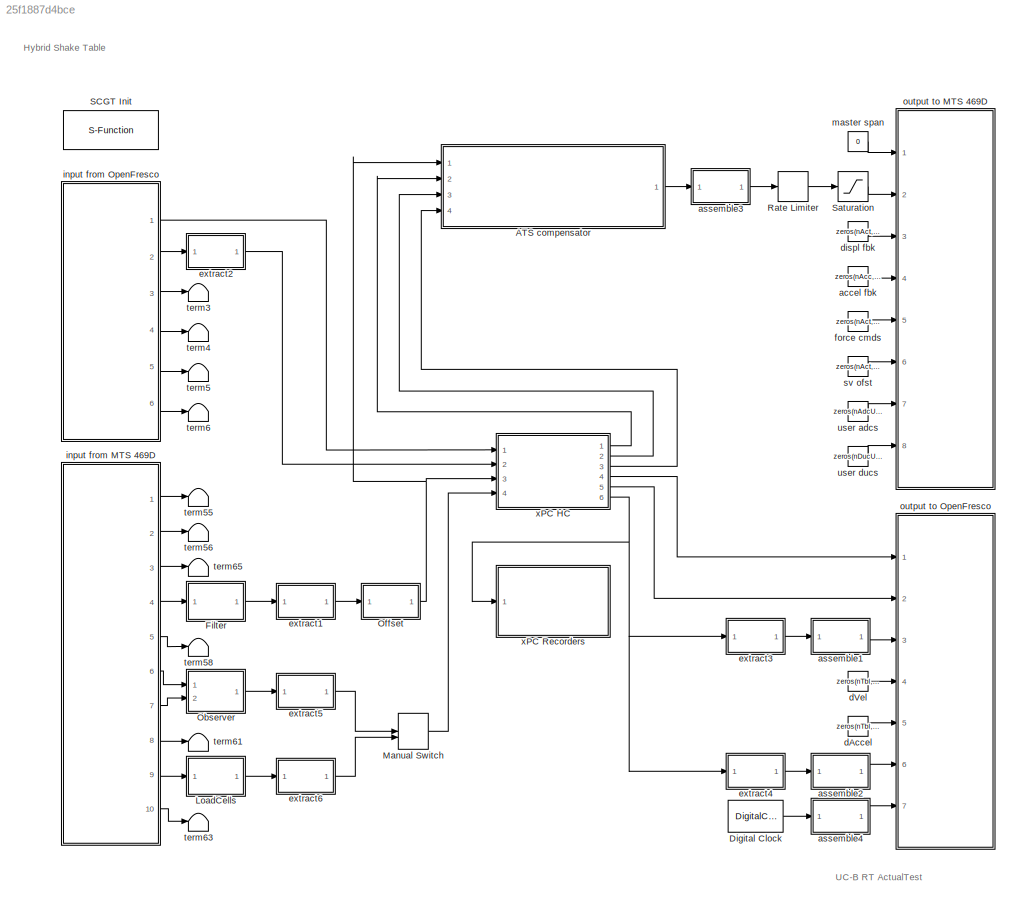
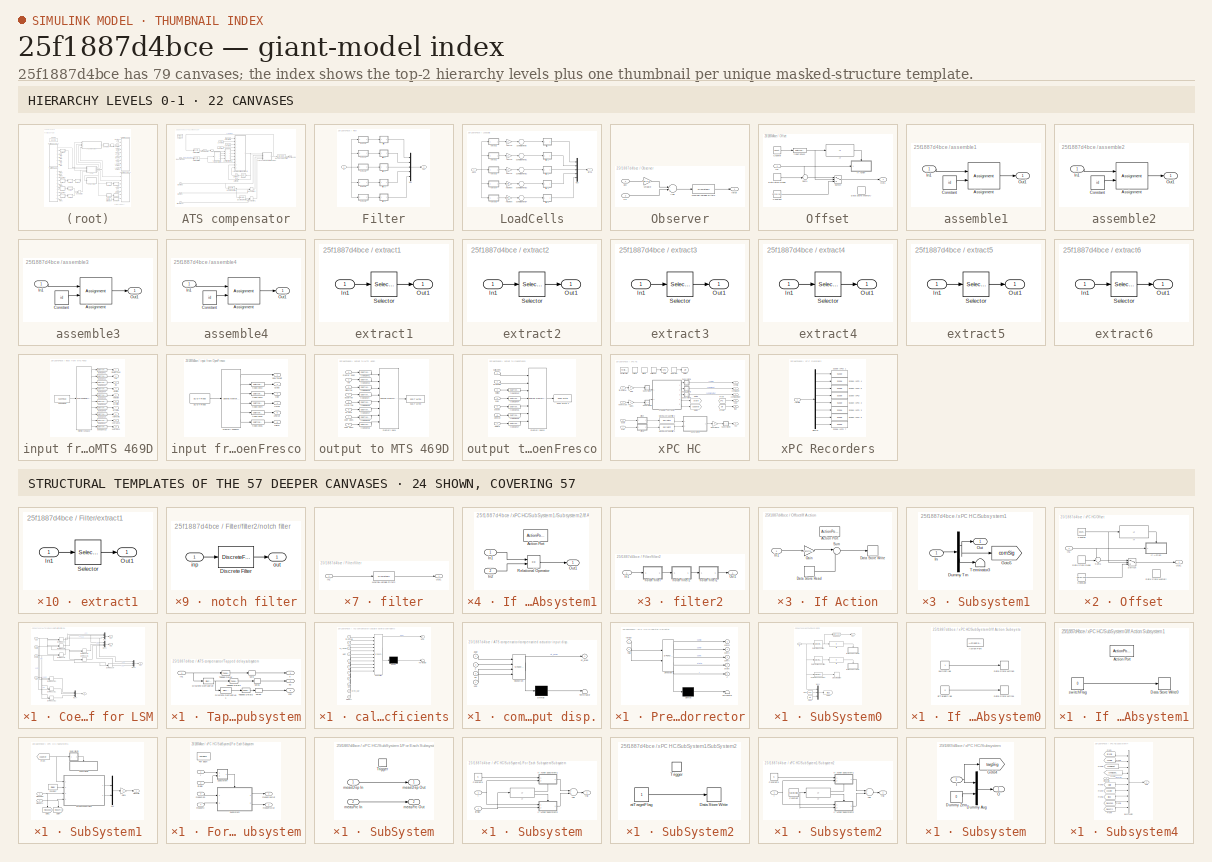
[diagram: thumbnail index - top-2 hierarchy levels (22 canvases) + 24 structural-template representatives of the remaining 57 canvases]
MODEL slx_25f1887d4bce
KIND model
CONFIG AbsTol = auto
CONFIG EnableMultiTasking = off
CONFIG FixedStep = controlPeriod
CONFIG MaxStep = auto
CONFIG MinStep = auto
CONFIG PreLoadFcn = initializeSimulation\ninitializeSCRAMNetGT\nATS_setup
CONFIG RelTol = 1e-3
CONFIG SampleTimeConstraint = Unconstrained
CONFIG Solver = FixedStepDiscrete
CONFIG SolverName = FixedStepDiscrete
CONFIG StartTime = 0.0
CONFIG StopTime = inf
BLOCK [SubSystem] ATS compensator
  Ports = [4, 1]
  RequestExecContextInheritance = off
BLOCK [DiscreteTransferFcn] ATS compensator/Butterworth filter
  Denominator = Zden
  InputPortMap = u0
  Numerator = Znum
  Ports = [1, 1]
  SampleTime = sample
BLOCK [DiscreteTransferFcn] ATS compensator/Butterworth filter1
  Denominator = Zden
  InputPortMap = u0
  Numerator = Znum
  Ports = [1, 1]
  SampleTime = sample
BLOCK [SubSystem] ATS compensator/Coefficient for LSM
  Ports = [4, 4]
  RequestExecContextInheritance = off
BLOCK [DotProduct] ATS compensator/Coefficient for LSM/Dot Product
  OutDataTypeStr = Inherit: Inherit via internal rule
BLOCK [DotProduct] ATS compensator/Coefficient for LSM/Dot Product1
  OutDataTypeStr = Inherit: Inherit via internal rule
BLOCK [DotProduct] ATS compensator/Coefficient for LSM/Dot Product10
  OutDataTypeStr = Inherit: Inherit via internal rule
BLOCK [DotProduct] ATS compensator/Coefficient for LSM/Dot Product11
  OutDataTypeStr = Inherit: Inherit via internal rule
BLOCK [DotProduct] ATS compensator/Coefficient for LSM/Dot Product12
  OutDataTypeStr = Inherit: Inherit via internal rule
BLOCK [DotProduct] ATS compensator/Coefficient for LSM/Dot Product2
  OutDataTypeStr = Inherit: Inherit via internal rule
BLOCK [DotProduct] ATS compensator/Coefficient for LSM/Dot Product4
  OutDataTypeStr = Inherit: Inherit via internal rule
BLOCK [DotProduct] ATS compensator/Coefficient for LSM/Dot Product5
  OutDataTypeStr = Inherit: Inherit via internal rule
BLOCK [DotProduct] ATS compensator/Coefficient for LSM/Dot Product7
  OutDataTypeStr = Inherit: Inherit via internal rule
BLOCK [Mux] ATS compensator/Coefficient for LSM/Mux
  DisplayOption = bar
  Inputs = 3
  Ports = [3, 1]
BLOCK [Mux] ATS compensator/Coefficient for LSM/Mux1
  DisplayOption = bar
  Inputs = 3
  Ports = [3, 1]
BLOCK [Mux] ATS compensator/Coefficient for LSM/Mux2
  DisplayOption = bar
  Inputs = 3
  Ports = [3, 1]
BLOCK [Mux] ATS compensator/Coefficient for LSM/Mux4
  DisplayOption = bar
  Inputs = 3
  Ports = [3, 1]
BLOCK [Outport] ATS compensator/Coefficient for LSM/X(1,:)
  IconDisplay = Port number
BLOCK [Outport] ATS compensator/Coefficient for LSM/X(2,:)
  IconDisplay = Port number
  Port = 2
BLOCK [Outport] ATS compensator/Coefficient for LSM/X(3,:)
  IconDisplay = Port number
  Port = 3
BLOCK [Outport] ATS compensator/Coefficient for LSM/Y
  IconDisplay = Port number
  Port = 4
BLOCK [Inport] ATS compensator/Coefficient for LSM/um
  IconDisplay = Port number
BLOCK [Inport] ATS compensator/Coefficient for LSM/x2dm
  IconDisplay = Port number
  Port = 4
BLOCK [Inport] ATS compensator/Coefficient for LSM/xdm
  IconDisplay = Port number
  Port = 3
BLOCK [Inport] ATS compensator/Coefficient for LSM/xm
  IconDisplay = Port number
  Port = 2
BLOCK [Constant] ATS compensator/Constant1
  Value = param
BLOCK [Constant] ATS compensator/Constant2
  Value = P_range
BLOCK [Constant] ATS compensator/Constant3
  Value = threshold
BLOCK [Constant] ATS compensator/Constant4
  Value = MRC
BLOCK [Reference] ATS compensator/Discrete Derivative  REF=simulink/Discrete/Discrete Derivative
  Ports = [1, 1]
  SourceBlock = simulink/Discrete/Discrete Derivative
  SourceProductBaseCode = SL
  SourceProductName = Simulink
  SourceType = Discrete Derivative
BLOCK [Reference] ATS compensator/Discrete Derivative1  REF=simulink/Discrete/Discrete Derivative
  Ports = [1, 1]
  SourceBlock = simulink/Discrete/Discrete Derivative
  SourceProductBaseCode = SL
  SourceProductName = Simulink
  SourceType = Discrete Derivative
BLOCK [ForEach] ATS compensator/For Each
  DisableCoverage = on
  IndexMode = One-based
  IterateSubsysMaskParameter = on,on
  Ports = []
  SubsysMaskParameterIterationDimension = 2,2
BLOCK [ManualSwitch] ATS compensator/Manual Switch
  CurrentSetting = 0
BLOCK [ManualSwitch] ATS compensator/Manual Switch1
  CurrentSetting = 0
BLOCK [DiscreteFir] ATS compensator/MovingAverage Filter2
  Coefficients = 1/numSample*ones(1,numSample)
  InputPortMap = u0
  OutputPortMap = o0
  Ports = [1, 1]
BLOCK [Selector] ATS compensator/Selector
  IndexOptions = Index vector (dialog)
  Indices = 4
  InputPortWidth = 4
  OutputSizes = 1
  Ports = [1, 1]
BLOCK [Reference] ATS compensator/Tapped Delay  REF=simulink/Discrete/Tapped Delay
  Ports = [1, 1]
  SourceBlock = simulink/Discrete/Tapped Delay
  SourceProductBaseCode = SL
  SourceProductName = Simulink
  SourceType = Tapped Delay Line
BLOCK [SubSystem] ATS compensator/Tapped delay subsystem
  Ports = [1, 3]
  RequestExecContextInheritance = off
BLOCK [Reference] ATS compensator/Tapped delay subsystem/Discrete Derivative  REF=simulink/Discrete/Discrete Derivative
  Ports = [1, 1]
  SourceBlock = simulink/Discrete/Discrete Derivative
  SourceProductBaseCode = SL
  SourceProductName = Simulink
  SourceType = Discrete Derivative
BLOCK [Reference] ATS compensator/Tapped delay subsystem/Discrete Derivative1  REF=simulink/Discrete/Discrete Derivative
  Ports = [1, 1]
  SourceBlock = simulink/Discrete/Discrete Derivative
  SourceProductBaseCode = SL
  SourceProductName = Simulink
  SourceType = Discrete Derivative
BLOCK [Inport] ATS compensator/Tapped delay subsystem/In1
  IconDisplay = Port number
BLOCK [Reference] ATS compensator/Tapped delay subsystem/Tapped Delay  REF=simulink/Discrete/Tapped Delay
  Ports = [1, 1]
  SourceBlock = simulink/Discrete/Tapped Delay
  SourceProductBaseCode = SL
  SourceProductName = Simulink
  SourceType = Tapped Delay Line
BLOCK [Reference] ATS compensator/Tapped delay subsystem/Tapped Delay1  REF=simulink/Discrete/Tapped Delay
  Ports = [1, 1]
  SourceBlock = simulink/Discrete/Tapped Delay
  SourceProductBaseCode = SL
  SourceProductName = Simulink
  SourceType = Tapped Delay Line
BLOCK [Reference] ATS compensator/Tapped delay subsystem/Tapped Delay2  REF=simulink/Discrete/Tapped Delay
  Ports = [1, 1]
  SourceBlock = simulink/Discrete/Tapped Delay
  SourceProductBaseCode = SL
  SourceProductName = Simulink
  SourceType = Tapped Delay Line
BLOCK [Selector] ATS compensator/Tapped delay subsystem/skip
  IndexOptions = Index vector (dialog)
  Indices = [1:SN:Nl]
  InputPortWidth = Nl
  OutputSizes = 1
  Ports = [1, 1]
BLOCK [Selector] ATS compensator/Tapped delay subsystem/skip1
  IndexOptions = Index vector (dialog)
  Indices = [1:SN:Nl]
  InputPortWidth = Nl
  OutputSizes = 1
  Ports = [1, 1]
BLOCK [Selector] ATS compensator/Tapped delay subsystem/skip2
  IndexOptions = Index vector (dialog)
  Indices = [1:SN:Nl]
  InputPortWidth = Nl
  OutputSizes = 1
  Ports = [1, 1]
BLOCK [Outport] ATS compensator/Tapped delay subsystem/x
  IconDisplay = Port number
BLOCK [Outport] ATS compensator/Tapped delay subsystem/x2d
  IconDisplay = Port number
  Port = 3
BLOCK [Outport] ATS compensator/Tapped delay subsystem/xd
  IconDisplay = Port number
  Port = 2
BLOCK [UnitDelay] ATS compensator/Unit Delay
  SampleTime = -1
BLOCK [UnitDelay] ATS compensator/Unit Delay1
  InputProcessing = Elements as channels (sample based)
  SampleTime = -1
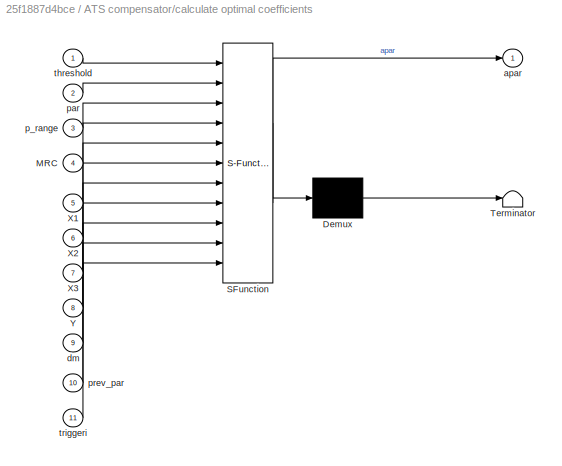
BLOCK [SubSystem] ATS compensator/calculate optimal coefficients
  ErrorFcn = Stateflow.Translate.translate
  PermitHierarchicalResolution = ExplicitOnly
  Ports = [11, 1]
  RequestExecContextInheritance = off
  SFBlockType = MATLAB Function
  TreatAsAtomicUnit = on
BLOCK [Demux] ATS compensator/calculate optimal coefficients/ Demux 
  Outputs = 1
  Ports = [1, 1]
BLOCK [S-Function] ATS compensator/calculate optimal coefficients/ SFunction 
  EnableBusSupport = off
  FunctionName = sf_sfun
  PortCounts = [11 2]
  Ports = [11, 2]
  SFcnIsStateOwnerBlock = off
  SFunctionDeploymentMode = off
  Tag = Stateflow S-Function HybridControllerD2D2withRot 14
BLOCK [Terminator] ATS compensator/calculate optimal coefficients/ Terminator 
BLOCK [Inport] ATS compensator/calculate optimal coefficients/MRC
  IconDisplay = Port number
  Port = 4
BLOCK [Inport] ATS compensator/calculate optimal coefficients/X1
  IconDisplay = Port number
  Port = 5
BLOCK [Inport] ATS compensator/calculate optimal coefficients/X2
  IconDisplay = Port number
  Port = 6
BLOCK [Inport] ATS compensator/calculate optimal coefficients/X3
  IconDisplay = Port number
  Port = 7
BLOCK [Inport] ATS compensator/calculate optimal coefficients/Y
  IconDisplay = Port number
  Port = 8
BLOCK [Outport] ATS compensator/calculate optimal coefficients/apar
  IconDisplay = Port number
BLOCK [Inport] ATS compensator/calculate optimal coefficients/dm
  IconDisplay = Port number
  Port = 9
BLOCK [Inport] ATS compensator/calculate optimal coefficients/p_range
  IconDisplay = Port number
  Port = 3
BLOCK [Inport] ATS compensator/calculate optimal coefficients/par
  IconDisplay = Port number
  Port = 2
BLOCK [Inport] ATS compensator/calculate optimal coefficients/prev_par
  IconDisplay = Port number
  Port = 10
BLOCK [Inport] ATS compensator/calculate optimal coefficients/threshold
  IconDisplay = Port number
BLOCK [Inport] ATS compensator/calculate optimal coefficients/triggeri
  IconDisplay = Port number
  Port = 11
BLOCK [SubSystem] ATS compensator/compensated actuator input disp.
  ErrorFcn = Stateflow.Translate.translate
  PermitHierarchicalResolution = ExplicitOnly
  Ports = [4, 1]
  RequestExecContextInheritance = off
  SFBlockType = MATLAB Function
  TreatAsAtomicUnit = on
BLOCK [Demux] ATS compensator/compensated actuator input disp./ Demux 
  Outputs = 1
  Ports = [1, 1]
BLOCK [S-Function] ATS compensator/compensated actuator input disp./ SFunction 
  EnableBusSupport = off
  FunctionName = sf_sfun
  PortCounts = [4 2]
  Ports = [4, 2]
  SFcnIsStateOwnerBlock = off
  SFunctionDeploymentMode = off
  Tag = Stateflow S-Function HybridControllerD2D2withRot 15
BLOCK [Terminator] ATS compensator/compensated actuator input disp./ Terminator 
BLOCK [Inport] ATS compensator/compensated actuator input disp./apar
  IconDisplay = Port number
BLOCK [Outport] ATS compensator/compensated actuator input disp./ut_pred
  IconDisplay = Port number
BLOCK [Inport] ATS compensator/compensated actuator input disp./x
  IconDisplay = Port number
  Port = 2
BLOCK [Inport] ATS compensator/compensated actuator input disp./x2d
  IconDisplay = Port number
  Port = 4
BLOCK [Inport] ATS compensator/compensated actuator input disp./xd
  IconDisplay = Port number
  Port = 3
BLOCK [Outport] ATS compensator/compensated disp
  ConcatenationDimension = 1
  IconDisplay = Port number
BLOCK [Inport] ATS compensator/measured disp
  IconDisplay = Port number
  Partition = on
  PartitionDimension = 1
  PartitionOffset = 0
  PartitionWidth = 1
BLOCK [Selector] ATS compensator/skip
  IndexOptions = Index vector (dialog)
  Indices = [1:SN:Nl]
  InputPortWidth = Nl
  OutputSizes = 1
  Ports = [1, 1]
BLOCK [Inport] ATS compensator/target accel
  IconDisplay = Port number
  Partition = on
  PartitionDimension = 1
  PartitionOffset = 0
  PartitionWidth = 1
  Port = 4
BLOCK [Inport] ATS compensator/target disp
  IconDisplay = Port number
  Partition = on
  PartitionDimension = 1
  PartitionOffset = 0
  PartitionWidth = 1
  Port = 2
BLOCK [Inport] ATS compensator/target vel
  IconDisplay = Port number
  Partition = on
  PartitionDimension = 1
  PartitionOffset = 0
  PartitionWidth = 1
  Port = 3
BLOCK [DigitalClock] Digital Clock
  SampleTime = controlPeriod
BLOCK [SubSystem] Filter
  Ports = [1, 1]
  RequestExecContextInheritance = off
BLOCK [Mux] Filter/Mux
  DisplayOption = bar
  Inputs = 5
  Ports = [5, 1]
BLOCK [SubSystem] Filter/extract1
  Ports = [1, 1]
  RequestExecContextInheritance = off
BLOCK [Inport] Filter/extract1/In1
  IconDisplay = Port number
BLOCK [Outport] Filter/extract1/Out1
  IconDisplay = Port number
BLOCK [Selector] Filter/extract1/Selector
  IndexOptions = Index vector (dialog)
  Indices = id
  InputPortWidth = size
  OutputSizes = 1
  Ports = [1, 1]
BLOCK [SubSystem] Filter/extract2
  Ports = [1, 1]
  RequestExecContextInheritance = off
BLOCK [Inport] Filter/extract2/In1
  IconDisplay = Port number
BLOCK [Outport] Filter/extract2/Out1
  IconDisplay = Port number
BLOCK [Selector] Filter/extract2/Selector
  IndexOptions = Index vector (dialog)
  Indices = id
  InputPortWidth = size
  OutputSizes = 1
  Ports = [1, 1]
BLOCK [SubSystem] Filter/extract3
  Ports = [1, 1]
  RequestExecContextInheritance = off
BLOCK [Inport] Filter/extract3/In1
  IconDisplay = Port number
BLOCK [Outport] Filter/extract3/Out1
  IconDisplay = Port number
BLOCK [Selector] Filter/extract3/Selector
  IndexOptions = Index vector (dialog)
  Indices = id
  InputPortWidth = size
  OutputSizes = 1
  Ports = [1, 1]
BLOCK [SubSystem] Filter/extract4
  Ports = [1, 1]
  RequestExecContextInheritance = off
BLOCK [Inport] Filter/extract4/In1
  IconDisplay = Port number
BLOCK [Outport] Filter/extract4/Out1
  IconDisplay = Port number
BLOCK [Selector] Filter/extract4/Selector
  IndexOptions = Index vector (dialog)
  Indices = id
  InputPortWidth = size
  OutputSizes = 1
  Ports = [1, 1]
BLOCK [SubSystem] Filter/extract5
  Ports = [1, 1]
  RequestExecContextInheritance = off
BLOCK [Inport] Filter/extract5/In1
  IconDisplay = Port number
BLOCK [Outport] Filter/extract5/Out1
  IconDisplay = Port number
BLOCK [Selector] Filter/extract5/Selector
  IndexOptions = Index vector (dialog)
  Indices = id
  InputPortWidth = size
  OutputSizes = 1
  Ports = [1, 1]
BLOCK [SubSystem] Filter/filter
  Ports = [1, 1]
  RequestExecContextInheritance = off
BLOCK [Inport] Filter/filter/In1
  IconDisplay = Port number
BLOCK [DiscreteFir] Filter/filter/MovingAverage Filter2
  Coefficients = 1/numSample*ones(1,numSample)
  InputPortMap = u0
  OutputPortMap = o0
  Ports = [1, 1]
BLOCK [Outport] Filter/filter/Out1
  IconDisplay = Port number
BLOCK [SubSystem] Filter/filter1
  Ports = [1, 1]
  RequestExecContextInheritance = off
BLOCK [Inport] Filter/filter1/In1
  IconDisplay = Port number
BLOCK [DiscreteFir] Filter/filter1/MovingAverage Filter2
  Coefficients = 1/numSample*ones(1,numSample)
  InputPortMap = u0
  OutputPortMap = o0
  Ports = [1, 1]
BLOCK [Outport] Filter/filter1/Out1
  IconDisplay = Port number
BLOCK [SubSystem] Filter/filter2
  Ports = [1, 1]
  RequestExecContextInheritance = off
BLOCK [Inport] Filter/filter2/In1
  IconDisplay = Port number
BLOCK [Outport] Filter/filter2/Out1
  IconDisplay = Port number
BLOCK [SubSystem] Filter/filter2/notch filter
  Ports = [1, 1]
  RequestExecContextInheritance = off
BLOCK [DiscreteFilter] Filter/filter2/notch filter/Discrete Filter
  Denominator = a
  InputPortMap = u0
  Numerator = b
  Ports = [1, 1]
BLOCK [Inport] Filter/filter2/notch filter/inp
  IconDisplay = Port number
BLOCK [Outport] Filter/filter2/notch filter/out
  IconDisplay = Port number
BLOCK [SubSystem] Filter/filter2/notch filter1
  Ports = [1, 1]
  RequestExecContextInheritance = off
BLOCK [DiscreteFilter] Filter/filter2/notch filter1/Discrete Filter
  Denominator = a
  InputPortMap = u0
  Numerator = b
  Ports = [1, 1]
BLOCK [Inport] Filter/filter2/notch filter1/inp
  IconDisplay = Port number
BLOCK [Outport] Filter/filter2/notch filter1/out
  IconDisplay = Port number
BLOCK [SubSystem] Filter/filter2/notch filter2
  Ports = [1, 1]
  RequestExecContextInheritance = off
BLOCK [DiscreteFilter] Filter/filter2/notch filter2/Discrete Filter
  Denominator = a
  InputPortMap = u0
  Numerator = b
  Ports = [1, 1]
BLOCK [Inport] Filter/filter2/notch filter2/inp
  IconDisplay = Port number
BLOCK [Outport] Filter/filter2/notch filter2/out
  IconDisplay = Port number
BLOCK [SubSystem] Filter/filter3
  Ports = [1, 1]
  RequestExecContextInheritance = off
BLOCK [Inport] Filter/filter3/In1
  IconDisplay = Port number
BLOCK [Outport] Filter/filter3/Out1
  IconDisplay = Port number
BLOCK [SubSystem] Filter/filter3/notch filter
  Ports = [1, 1]
  RequestExecContextInheritance = off
BLOCK [DiscreteFilter] Filter/filter3/notch filter/Discrete Filter
  Denominator = a
  InputPortMap = u0
  Numerator = b
  Ports = [1, 1]
BLOCK [Inport] Filter/filter3/notch filter/inp
  IconDisplay = Port number
BLOCK [Outport] Filter/filter3/notch filter/out
  IconDisplay = Port number
BLOCK [SubSystem] Filter/filter3/notch filter1
  Ports = [1, 1]
  RequestExecContextInheritance = off
BLOCK [DiscreteFilter] Filter/filter3/notch filter1/Discrete Filter
  Denominator = a
  InputPortMap = u0
  Numerator = b
  Ports = [1, 1]
BLOCK [Inport] Filter/filter3/notch filter1/inp
  IconDisplay = Port number
BLOCK [Outport] Filter/filter3/notch filter1/out
  IconDisplay = Port number
BLOCK [SubSystem] Filter/filter3/notch filter2
  Ports = [1, 1]
  RequestExecContextInheritance = off
BLOCK [DiscreteFilter] Filter/filter3/notch filter2/Discrete Filter
  Denominator = a
  InputPortMap = u0
  Numerator = b
  Ports = [1, 1]
BLOCK [Inport] Filter/filter3/notch filter2/inp
  IconDisplay = Port number
BLOCK [Outport] Filter/filter3/notch filter2/out
  IconDisplay = Port number
BLOCK [SubSystem] Filter/filter4
  Ports = [1, 1]
  RequestExecContextInheritance = off
BLOCK [Inport] Filter/filter4/In1
  IconDisplay = Port number
BLOCK [Outport] Filter/filter4/Out1
  IconDisplay = Port number
BLOCK [SubSystem] Filter/filter4/notch filter
  Ports = [1, 1]
  RequestExecContextInheritance = off
BLOCK [DiscreteFilter] Filter/filter4/notch filter/Discrete Filter
  Denominator = a
  InputPortMap = u0
  Numerator = b
  Ports = [1, 1]
BLOCK [Inport] Filter/filter4/notch filter/inp
  IconDisplay = Port number
BLOCK [Outport] Filter/filter4/notch filter/out
  IconDisplay = Port number
BLOCK [SubSystem] Filter/filter4/notch filter1
  Ports = [1, 1]
  RequestExecContextInheritance = off
BLOCK [DiscreteFilter] Filter/filter4/notch filter1/Discrete Filter
  Denominator = a
  InputPortMap = u0
  Numerator = b
  Ports = [1, 1]
BLOCK [Inport] Filter/filter4/notch filter1/inp
  IconDisplay = Port number
BLOCK [Outport] Filter/filter4/notch filter1/out
  IconDisplay = Port number
BLOCK [SubSystem] Filter/filter4/notch filter2
  Ports = [1, 1]
  RequestExecContextInheritance = off
BLOCK [DiscreteFilter] Filter/filter4/notch filter2/Discrete Filter
  Denominator = a
  InputPortMap = u0
  Numerator = b
  Ports = [1, 1]
BLOCK [Inport] Filter/filter4/notch filter2/inp
  IconDisplay = Port number
BLOCK [Outport] Filter/filter4/notch filter2/out
  IconDisplay = Port number
BLOCK [Inport] Filter/in
  IconDisplay = Port number
BLOCK [Outport] Filter/out
  IconDisplay = Port number
BLOCK [SubSystem] LoadCells
  Ports = [1, 1]
  RequestExecContextInheritance = off
BLOCK [Mux] LoadCells/Mux
  DisplayOption = bar
  Inputs = 5
  Ports = [5, 1]
BLOCK [Sum] LoadCells/Sum of Elements
  InputSameDT = off
  Inputs = +
  OutDataTypeStr = Inherit: Inherit via internal rule
  Ports = [1, 1]
  SaturateOnIntegerOverflow = off
BLOCK [Sum] LoadCells/Sum of Elements1
  InputSameDT = off
  Inputs = +
  OutDataTypeStr = Inherit: Inherit via internal rule
  Ports = [1, 1]
  SaturateOnIntegerOverflow = off
BLOCK [Sum] LoadCells/Sum of Elements2
  InputSameDT = off
  Inputs = +
  OutDataTypeStr = Inherit: Inherit via internal rule
  Ports = [1, 1]
  SaturateOnIntegerOverflow = off
BLOCK [Sum] LoadCells/Sum of Elements3
  InputSameDT = off
  Inputs = +
  OutDataTypeStr = Inherit: Inherit via internal rule
  Ports = [1, 1]
  SaturateOnIntegerOverflow = off
BLOCK [Sum] LoadCells/Sum of Elements4
  InputSameDT = off
  Inputs = +
  OutDataTypeStr = Inherit: Inherit via internal rule
  Ports = [1, 1]
  SaturateOnIntegerOverflow = off
BLOCK [Gain] LoadCells/X Force
  Gain = [1 1 1 1]
  OutDataTypeStr = Inherit: Inherit via internal rule
  ParamDataTypeStr = Inherit: Inherit via internal rule
  SaturateOnIntegerOverflow = off
BLOCK [Gain] LoadCells/X Moment
  Gain = 36*[-1 1 1 -1]
  OutDataTypeStr = Inherit: Inherit via internal rule
  ParamDataTypeStr = Inherit: Inherit via internal rule
  SaturateOnIntegerOverflow = off
BLOCK [Gain] LoadCells/Y Force
  Gain = [1 1 1 1]
  OutDataTypeStr = Inherit: Inherit via internal rule
  ParamDataTypeStr = Inherit: Inherit via internal rule
  SaturateOnIntegerOverflow = off
BLOCK [Gain] LoadCells/Y Moment
  Gain = 36*[1 1 -1 -1]
  OutDataTypeStr = Inherit: Inherit via internal rule
  ParamDataTypeStr = Inherit: Inherit via internal rule
  SaturateOnIntegerOverflow = off
BLOCK [Gain] LoadCells/Z Force
  Gain = [1 1 1 1]
  OutDataTypeStr = Inherit: Inherit via internal rule
  ParamDataTypeStr = Inherit: Inherit via internal rule
  SaturateOnIntegerOverflow = off
BLOCK [Inport] LoadCells/adcs
  IconDisplay = Port number
BLOCK [SubSystem] LoadCells/extract1
  Ports = [1, 1]
  RequestExecContextInheritance = off
BLOCK [Inport] LoadCells/extract1/In1
  IconDisplay = Port number
BLOCK [Outport] LoadCells/extract1/Out1
  IconDisplay = Port number
BLOCK [Selector] LoadCells/extract1/Selector
  IndexOptions = Index vector (dialog)
  Indices = id
  InputPortWidth = size
  OutputSizes = 1
  Ports = [1, 1]
BLOCK [SubSystem] LoadCells/extract2
  Ports = [1, 1]
  RequestExecContextInheritance = off
BLOCK [Inport] LoadCells/extract2/In1
  IconDisplay = Port number
BLOCK [Outport] LoadCells/extract2/Out1
  IconDisplay = Port number
BLOCK [Selector] LoadCells/extract2/Selector
  IndexOptions = Index vector (dialog)
  Indices = id
  InputPortWidth = size
  OutputSizes = 1
  Ports = [1, 1]
BLOCK [SubSystem] LoadCells/extract3
  Ports = [1, 1]
  RequestExecContextInheritance = off
BLOCK [Inport] LoadCells/extract3/In1
  IconDisplay = Port number
BLOCK [Outport] LoadCells/extract3/Out1
  IconDisplay = Port number
BLOCK [Selector] LoadCells/extract3/Selector
  IndexOptions = Index vector (dialog)
  Indices = id
  InputPortWidth = size
  OutputSizes = 1
  Ports = [1, 1]
BLOCK [SubSystem] LoadCells/extract4
  Ports = [1, 1]
  RequestExecContextInheritance = off
BLOCK [Inport] LoadCells/extract4/In1
  IconDisplay = Port number
BLOCK [Outport] LoadCells/extract4/Out1
  IconDisplay = Port number
BLOCK [Selector] LoadCells/extract4/Selector
  IndexOptions = Index vector (dialog)
  Indices = id
  InputPortWidth = size
  OutputSizes = 1
  Ports = [1, 1]
BLOCK [SubSystem] LoadCells/extract5
  Ports = [1, 1]
  RequestExecContextInheritance = off
BLOCK [Inport] LoadCells/extract5/In1
  IconDisplay = Port number
BLOCK [Outport] LoadCells/extract5/Out1
  IconDisplay = Port number
BLOCK [Selector] LoadCells/extract5/Selector
  IndexOptions = Index vector (dialog)
  Indices = id
  InputPortWidth = size
  OutputSizes = 1
  Ports = [1, 1]
BLOCK [SubSystem] LoadCells/filter
  Ports = [1, 1]
  RequestExecContextInheritance = off
BLOCK [Inport] LoadCells/filter/In1
  IconDisplay = Port number
BLOCK [DiscreteFir] LoadCells/filter/MovingAverage Filter2
  Coefficients = 1/numSample*ones(1,numSample)
  InputPortMap = u0
  OutputPortMap = o0
  Ports = [1, 1]
BLOCK [Outport] LoadCells/filter/Out1
  IconDisplay = Port number
BLOCK [SubSystem] LoadCells/filter1
  Ports = [1, 1]
  RequestExecContextInheritance = off
BLOCK [Inport] LoadCells/filter1/In1
  IconDisplay = Port number
BLOCK [DiscreteFir] LoadCells/filter1/MovingAverage Filter2
  Coefficients = 1/numSample*ones(1,numSample)
  InputPortMap = u0
  OutputPortMap = o0
  Ports = [1, 1]
BLOCK [Outport] LoadCells/filter1/Out1
  IconDisplay = Port number
BLOCK [SubSystem] LoadCells/filter2
  Ports = [1, 1]
  RequestExecContextInheritance = off
BLOCK [Inport] LoadCells/filter2/In1
  IconDisplay = Port number
BLOCK [DiscreteFir] LoadCells/filter2/MovingAverage Filter2
  Coefficients = 1/numSample*ones(1,numSample)
  InputPortMap = u0
  OutputPortMap = o0
  Ports = [1, 1]
BLOCK [Outport] LoadCells/filter2/Out1
  IconDisplay = Port number
BLOCK [SubSystem] LoadCells/filter3
  Ports = [1, 1]
  RequestExecContextInheritance = off
BLOCK [Inport] LoadCells/filter3/In1
  IconDisplay = Port number
BLOCK [DiscreteFir] LoadCells/filter3/MovingAverage Filter2
  Coefficients = 1/numSample*ones(1,numSample)
  InputPortMap = u0
  OutputPortMap = o0
  Ports = [1, 1]
BLOCK [Outport] LoadCells/filter3/Out1
  IconDisplay = Port number
BLOCK [SubSystem] LoadCells/filter4
  Ports = [1, 1]
  RequestExecContextInheritance = off
BLOCK [Inport] LoadCells/filter4/In1
  IconDisplay = Port number
BLOCK [DiscreteFir] LoadCells/filter4/MovingAverage Filter2
  Coefficients = 1/numSample*ones(1,numSample)
  InputPortMap = u0
  OutputPortMap = o0
  Ports = [1, 1]
BLOCK [Outport] LoadCells/filter4/Out1
  IconDisplay = Port number
BLOCK [Outport] LoadCells/force
  IconDisplay = Port number
BLOCK [ManualSwitch] Manual Switch
  CurrentSetting = 0
BLOCK [SubSystem] Observer
  Ports = [2, 1]
  RequestExecContextInheritance = off
BLOCK [Sum] Observer/Add
  InputSameDT = off
  Inputs = -+
  OutDataTypeStr = Inherit: Inherit via internal rule
  Ports = [2, 1]
  SaturateOnIntegerOverflow = off
BLOCK [DiscreteFir] Observer/MovingAverage Filter2
  Coefficients = 1/numSample*ones(1,numSample)
  InputPortMap = u0
  OutputPortMap = o0
  Ports = [1, 1]
BLOCK [Gain] Observer/Mtable
  Gain = [86.8 86.8 86.8 0.0 0.0 0.0]
  OutDataTypeStr = Inherit: Inherit via internal rule
  ParamDataTypeStr = Inherit: Inherit via internal rule
  SaturateOnIntegerOverflow = off
BLOCK [Inport] Observer/acc
  IconDisplay = Port number
BLOCK [Outport] Observer/force
  IconDisplay = Port number
BLOCK [Inport] Observer/frc
  IconDisplay = Port number
  Port = 2
BLOCK [SubSystem] Offset
  Ports = [1, 1]
  RequestExecContextInheritance = off
BLOCK [Constant] Offset/Constant
  Value = zeros(1,nS)
BLOCK [Reference] Offset/Counter  REF=simulink/Sources/Counter
Free-Running
  Ports = [0, 1]
  SourceBlock = simulink/Sources/Counter\nFree-Running
  SourceProductBaseCode = SL
  SourceProductName = Simulink
  SourceType = Counter Free-Running
BLOCK [DataStoreMemory] Offset/Data Store Memory
  DataStoreName = x0
  InitialValue = zeros(1,nS)
  OutDataTypeStr = double
  ShowAdditionalParam = off
  SignalType = real
BLOCK [DataStoreRead] Offset/Data Store Read
  DataStoreName = x0
  Ports = [0, 1]
  SampleTime = controlPeriod
BLOCK [If] Offset/If
  IfExpression = u1 < nOffset
  Ports = [1, 1]
  ShowElse = off
BLOCK [SubSystem] Offset/If Action
  Ports = [1, 0, 0, 0, 0, 0, 0, 1]
  RequestExecContextInheritance = off
  TreatAsAtomicUnit = on
BLOCK [ActionPort] Offset/If Action/Action Port
  ActionType = then
  PropagateVarSize = During execution
BLOCK [DataStoreRead] Offset/If Action/Data Store Read
  DataStoreName = x0
  Ports = [0, 1]
  SampleTime = controlPeriod
BLOCK [DataStoreWrite] Offset/If Action/Data Store Write
  DataStoreName = x0
  Ports = [1]
BLOCK [Gain] Offset/If Action/Gain
  Gain = 1/nOffset
BLOCK [Inport] Offset/If Action/In1
  IconDisplay = Port number
BLOCK [Sum] Offset/If Action/Sum
  IconShape = round
  Inputs = |++
  Ports = [2, 1]
BLOCK [Inport] Offset/In1
  IconDisplay = Port number
BLOCK [Outport] Offset/Out1
  IconDisplay = Port number
BLOCK [Sum] Offset/Sum1
  IconShape = round
  Inputs = +-|
  Ports = [2, 1]
BLOCK [Switch] Offset/Switch
  Threshold = nOffset
BLOCK [DataTypeConversion] Offset/typeConv12
  OutDataTypeStr = double
BLOCK [RateLimiter] Rate Limiter
  FallingSlewLimit = -[30 30 30 15 15 15]
  RisingSlewLimit = [30 30 30 15 15 15]
  SampleTimeMode = inherited
BLOCK [S-Function] SCGT Init 
  EnableBusSupport = off
  FunctionName = cwcec_scgt_init
  InitFcn = msc150checks(1)
  Parameters = node(1).Interface.Internal.NodeID, node(1).Interface.Internal.ActiveInterface, node.Interface.Internal.Options, node(1).Interface.Internal.Mask, pci
  Ports = []
  SFcnIsStateOwnerBlock = off
  SFunctionDeploymentMode = off
BLOCK [Saturate] Saturation
  InputPortMap = u0
  LowerLimit = [-4.9 -4.9 -1.9 -0.9 -0.9 -0.9]
  Ports = [1, 1]
  UpperLimit = [4.9 4.9 1.9 0.9 0.9 0.9]
BLOCK [Constant] accel fbk
  Value = zeros(nAcc,1)
BLOCK [SubSystem] assemble1
  Ports = [1, 1]
  RequestExecContextInheritance = off
BLOCK [Assignment] assemble1/Assignment
  IndexOptions = Index vector (port)
  Indices = 1
  OutputInitialize = Specify size for each dimension in table
  OutputSizes = size
  Ports = [2, 1]
BLOCK [Constant] assemble1/Constant
  Value = id
BLOCK [Inport] assemble1/In1
  IconDisplay = Port number
BLOCK [Outport] assemble1/Out1
  IconDisplay = Port number
BLOCK [SubSystem] assemble2
  Ports = [1, 1]
  RequestExecContextInheritance = off
BLOCK [Assignment] assemble2/Assignment
  IndexOptions = Index vector (port)
  Indices = 1
  OutputInitialize = Specify size for each dimension in table
  OutputSizes = size
  Ports = [2, 1]
BLOCK [Constant] assemble2/Constant
  Value = id
BLOCK [Inport] assemble2/In1
  IconDisplay = Port number
BLOCK [Outport] assemble2/Out1
  IconDisplay = Port number
BLOCK [SubSystem] assemble3
  Ports = [1, 1]
  RequestExecContextInheritance = off
BLOCK [Assignment] assemble3/Assignment
  IndexOptions = Index vector (port)
  Indices = 1
  OutputInitialize = Specify size for each dimension in table
  OutputSizes = size
  Ports = [2, 1]
BLOCK [Constant] assemble3/Constant
  Value = id
BLOCK [Inport] assemble3/In1
  IconDisplay = Port number
BLOCK [Outport] assemble3/Out1
  IconDisplay = Port number
BLOCK [SubSystem] assemble4
  Ports = [1, 1]
  RequestExecContextInheritance = off
BLOCK [Assignment] assemble4/Assignment
  IndexOptions = Index vector (port)
  Indices = 1
  OutputInitialize = Specify size for each dimension in table
  OutputSizes = size
  Ports = [2, 1]
BLOCK [Constant] assemble4/Constant
  Value = id
BLOCK [Inport] assemble4/In1
  IconDisplay = Port number
BLOCK [Outport] assemble4/Out1
  IconDisplay = Port number
BLOCK [Constant] dAccel
  Value = zeros(nTbl,1)
BLOCK [Constant] dVel
  Value = zeros(nTbl,1)
BLOCK [Constant] displ fbk
  Value = zeros(nAct,1)
BLOCK [SubSystem] extract1
  Ports = [1, 1]
  RequestExecContextInheritance = off
BLOCK [Inport] extract1/In1
  IconDisplay = Port number
BLOCK [Outport] extract1/Out1
  IconDisplay = Port number
BLOCK [Selector] extract1/Selector
  IndexOptions = Index vector (dialog)
  Indices = id
  InputPortWidth = size
  OutputSizes = 1
  Ports = [1, 1]
BLOCK [SubSystem] extract2
  Ports = [1, 1]
  RequestExecContextInheritance = off
BLOCK [Inport] extract2/In1
  IconDisplay = Port number
BLOCK [Outport] extract2/Out1
  IconDisplay = Port number
BLOCK [Selector] extract2/Selector
  IndexOptions = Index vector (dialog)
  Indices = id
  InputPortWidth = size
  OutputSizes = 1
  Ports = [1, 1]
BLOCK [SubSystem] extract3
  Ports = [1, 1]
  RequestExecContextInheritance = off
BLOCK [Inport] extract3/In1
  IconDisplay = Port number
BLOCK [Outport] extract3/Out1
  IconDisplay = Port number
BLOCK [Selector] extract3/Selector
  IndexOptions = Index vector (dialog)
  Indices = id
  InputPortWidth = size
  OutputSizes = 1
  Ports = [1, 1]
BLOCK [SubSystem] extract4
  Ports = [1, 1]
  RequestExecContextInheritance = off
BLOCK [Inport] extract4/In1
  IconDisplay = Port number
BLOCK [Outport] extract4/Out1
  IconDisplay = Port number
BLOCK [Selector] extract4/Selector
  IndexOptions = Index vector (dialog)
  Indices = id
  InputPortWidth = size
  OutputSizes = 1
  Ports = [1, 1]
BLOCK [SubSystem] extract5
  Ports = [1, 1]
  RequestExecContextInheritance = off
BLOCK [Inport] extract5/In1
  IconDisplay = Port number
BLOCK [Outport] extract5/Out1
  IconDisplay = Port number
BLOCK [Selector] extract5/Selector
  IndexOptions = Index vector (dialog)
  Indices = id
  InputPortWidth = size
  OutputSizes = 1
  Ports = [1, 1]
BLOCK [SubSystem] extract6
  Ports = [1, 1]
  RequestExecContextInheritance = off
BLOCK [Inport] extract6/In1
  IconDisplay = Port number
BLOCK [Outport] extract6/Out1
  IconDisplay = Port number
BLOCK [Selector] extract6/Selector
  IndexOptions = Index vector (dialog)
  Indices = id
  InputPortWidth = size
  OutputSizes = 1
  Ports = [1, 1]
BLOCK [Constant] force cmds
  Value = zeros(nAct,1)
BLOCK [SubSystem] input from MTS 469D
  Ports = [0, 10]
  RequestExecContextInheritance = off
BLOCK [Reference] input from MTS 469D/SCGT Read   REF=cwcec_scgtLib/SCGT Read 
  Ports = [0, 1]
  SourceBlock = cwcec_scgtLib/SCGT Read
  SourceProductName = Simulink Real-Time: SCRAMNet GT Library
  SourceType = SCGT Read
BLOCK [Outport] input from MTS 469D/accel fbk
  IconDisplay = Port number
  Port = 6
BLOCK [Outport] input from MTS 469D/displ fbk
  IconDisplay = Port number
  Port = 4
BLOCK [Outport] input from MTS 469D/fbk
  IconDisplay = Port number
  Port = 3
BLOCK [Outport] input from MTS 469D/force fbk
  IconDisplay = Port number
  Port = 7
BLOCK [Outport] input from MTS 469D/master span
  IconDisplay = Port number
BLOCK [Reference] input from MTS 469D/memory unpack  REF=slrtlib/Shared
Memory/Shared Memory Unpack 
  Ports = [1, 10]
  SourceBlock = slrtlib/Shared\nMemory/Shared Memory Unpack
  SourceProductBaseCode = XP
  SourceProductName = Simulink Real-Time
  SourceType = Shared Memory Partition Unpacking
BLOCK [Outport] input from MTS 469D/ref
  IconDisplay = Port number
  Port = 2
BLOCK [DataTypeConversion] input from MTS 469D/typeConv1
  OutDataTypeStr = double
BLOCK [DataTypeConversion] input from MTS 469D/typeConv10
  OutDataTypeStr = double
BLOCK [DataTypeConversion] input from MTS 469D/typeConv2
  OutDataTypeStr = double
BLOCK [DataTypeConversion] input from MTS 469D/typeConv3
  OutDataTypeStr = double
BLOCK [DataTypeConversion] input from MTS 469D/typeConv4
  OutDataTypeStr = double
BLOCK [DataTypeConversion] input from MTS 469D/typeConv5
  OutDataTypeStr = double
BLOCK [DataTypeConversion] input from MTS 469D/typeConv6
  OutDataTypeStr = double
BLOCK [DataTypeConversion] input from MTS 469D/typeConv7
  OutDataTypeStr = double
BLOCK [DataTypeConversion] input from MTS 469D/typeConv8
  OutDataTypeStr = double
BLOCK [DataTypeConversion] input from MTS 469D/typeConv9
  OutDataTypeStr = double
BLOCK [Outport] input from MTS 469D/user adcs
  IconDisplay = Port number
  Port = 9
BLOCK [Outport] input from MTS 469D/user ducs
  IconDisplay = Port number
  Port = 10
BLOCK [Outport] input from MTS 469D/valve cmd
  IconDisplay = Port number
  Port = 8
BLOCK [Outport] input from MTS 469D/veloc fbk
  IconDisplay = Port number
  Port = 5
BLOCK [SubSystem] input from OpenFresco
  Ports = [0, 6]
  RequestExecContextInheritance = off
BLOCK [Reference] input from OpenFresco/SCGT Read  REF=cwcec_scgtLib/SCGT Read 
  Ports = [0, 1]
  SourceBlock = cwcec_scgtLib/SCGT Read
  SourceProductName = Simulink Real-Time: SCRAMNet GT Library
  SourceType = SCGT Read
BLOCK [Outport] input from OpenFresco/cAccel
  IconDisplay = Port number
  Port = 4
BLOCK [Outport] input from OpenFresco/cDisp
  IconDisplay = Port number
  Port = 2
BLOCK [Outport] input from OpenFresco/cForce
  IconDisplay = Port number
  Port = 5
BLOCK [Outport] input from OpenFresco/cTime
  IconDisplay = Port number
  Port = 6
BLOCK [Outport] input from OpenFresco/cVel
  IconDisplay = Port number
  Port = 3
BLOCK [Reference] input from OpenFresco/memory unpack1  REF=slrtlib/Shared
Memory/Shared Memory Unpack 
  Ports = [1, 6]
  SourceBlock = slrtlib/Shared\nMemory/Shared Memory Unpack
  SourceProductBaseCode = XP
  SourceProductName = Simulink Real-Time
  SourceType = Shared Memory Partition Unpacking
BLOCK [Outport] input from OpenFresco/newTarget
  IconDisplay = Port number
BLOCK [DataTypeConversion] input from OpenFresco/typeConv2
  OutDataTypeStr = double
BLOCK [DataTypeConversion] input from OpenFresco/typeConv3
  OutDataTypeStr = double
BLOCK [DataTypeConversion] input from OpenFresco/typeConv4
  OutDataTypeStr = double
BLOCK [DataTypeConversion] input from OpenFresco/typeConv5
  OutDataTypeStr = double
BLOCK [DataTypeConversion] input from OpenFresco/typeConv6
  OutDataTypeStr = double
BLOCK [Constant] master span
  Value = 0
BLOCK [SubSystem] output to MTS 469D
  Ports = [8]
  RequestExecContextInheritance = off
BLOCK [Reference] output to MTS 469D/SCGT Write   REF=cwcec_scgtLib/SCGT Write 
  Ports = [1]
  SourceBlock = cwcec_scgtLib/SCGT Write
  SourceProductName = Simulink Real-Time: SCRAMNet GT Library
  SourceType = SCGT Write
BLOCK [Inport] output to MTS 469D/accel fbk
  IconDisplay = Port number
  Port = 4
BLOCK [Inport] output to MTS 469D/displ fbk
  IconDisplay = Port number
  Port = 3
BLOCK [Inport] output to MTS 469D/force fbk
  IconDisplay = Port number
  Port = 5
BLOCK [Inport] output to MTS 469D/master span
  IconDisplay = Port number
BLOCK [Reference] output to MTS 469D/memory pack  REF=slrtlib/Shared
Memory/Shared Memory Pack 
  Ports = [8, 1]
  SourceBlock = slrtlib/Shared\nMemory/Shared Memory Pack
  SourceProductBaseCode = XP
  SourceProductName = Simulink Real-Time
  SourceType = Shared-memory Pack
BLOCK [Inport] output to MTS 469D/ref
  IconDisplay = Port number
  Port = 2
BLOCK [Inport] output to MTS 469D/sv ofst
  IconDisplay = Port number
  Port = 6
BLOCK [DataTypeConversion] output to MTS 469D/typeConv1
  OutDataTypeStr = single
BLOCK [DataTypeConversion] output to MTS 469D/typeConv2
  OutDataTypeStr = single
BLOCK [DataTypeConversion] output to MTS 469D/typeConv3
  OutDataTypeStr = single
BLOCK [DataTypeConversion] output to MTS 469D/typeConv4
  OutDataTypeStr = single
BLOCK [DataTypeConversion] output to MTS 469D/typeConv5
  OutDataTypeStr = single
BLOCK [DataTypeConversion] output to MTS 469D/typeConv6
  OutDataTypeStr = single
BLOCK [DataTypeConversion] output to MTS 469D/typeConv7
  OutDataTypeStr = single
BLOCK [DataTypeConversion] output to MTS 469D/typeConv8
  OutDataTypeStr = single
BLOCK [Inport] output to MTS 469D/user adcs
  IconDisplay = Port number
  Port = 7
BLOCK [Inport] output to MTS 469D/user ducs
  IconDisplay = Port number
  Port = 8
BLOCK [SubSystem] output to OpenFresco
  Ports = [7]
  RequestExecContextInheritance = off
BLOCK [Reference] output to OpenFresco/SCGT Write 2  REF=cwcec_scgtLib/SCGT Write 
  Ports = [1]
  SourceBlock = cwcec_scgtLib/SCGT Write
  SourceProductName = Simulink Real-Time: SCRAMNet GT Library
  SourceType = SCGT Write
BLOCK [Inport] output to OpenFresco/atTarget
  IconDisplay = Port number
  Port = 2
BLOCK [Inport] output to OpenFresco/dAccel
  IconDisplay = Port number
  Port = 5
BLOCK [Inport] output to OpenFresco/dDisp
  IconDisplay = Port number
  Port = 3
BLOCK [Inport] output to OpenFresco/dForce
  IconDisplay = Port number
  Port = 6
BLOCK [Inport] output to OpenFresco/dTime
  IconDisplay = Port number
  Port = 7
BLOCK [Inport] output to OpenFresco/dVel
  IconDisplay = Port number
  Port = 4
BLOCK [Reference] output to OpenFresco/memory pack2  REF=slrtlib/Shared
Memory/Shared Memory Pack 
  Ports = [7, 1]
  SourceBlock = slrtlib/Shared\nMemory/Shared Memory Pack
  SourceProductBaseCode = XP
  SourceProductName = Simulink Real-Time
  SourceType = Shared-memory Pack
BLOCK [Inport] output to OpenFresco/switchPC
  IconDisplay = Port number
BLOCK [DataTypeConversion] output to OpenFresco/typeConv3
  OutDataTypeStr = single
BLOCK [DataTypeConversion] output to OpenFresco/typeConv4
  OutDataTypeStr = single
BLOCK [DataTypeConversion] output to OpenFresco/typeConv5
  OutDataTypeStr = single
BLOCK [DataTypeConversion] output to OpenFresco/typeConv6
  OutDataTypeStr = single
BLOCK [DataTypeConversion] output to OpenFresco/typeConv7
  OutDataTypeStr = single
BLOCK [Constant] sv ofst
  Value = zeros(nAct,1)
BLOCK [Terminator] term3
BLOCK [Terminator] term4
BLOCK [Terminator] term5
BLOCK [Terminator] term55
BLOCK [Terminator] term56
BLOCK [Terminator] term58
BLOCK [Terminator] term6
BLOCK [Terminator] term61
BLOCK [Terminator] term63
BLOCK [Terminator] term65
BLOCK [Constant] user adcs
  Value = zeros(nAdcU,1)
BLOCK [Constant] user ducs
  OutDataTypeStr = uint32
  Value = zeros(nDucU, 1)
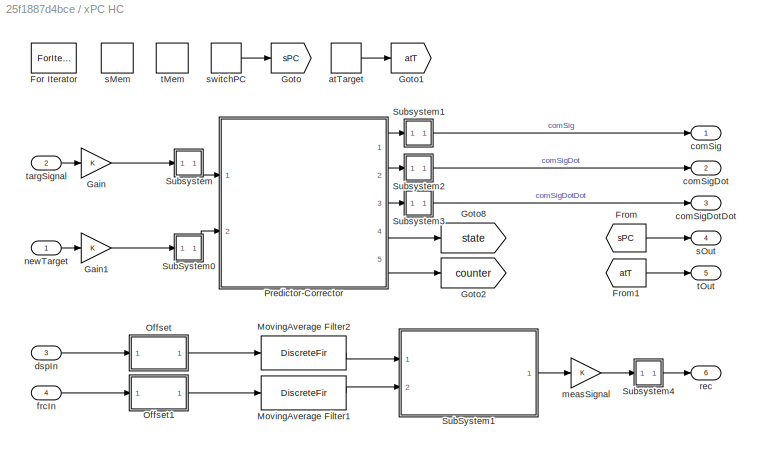
BLOCK [SubSystem] xPC HC
  Ports = [4, 6]
  RequestExecContextInheritance = off
BLOCK [ForIterator] xPC HC/For Iterator
  IterationLimit = upFact
  Ports = []
  ShowIterationPort = off
BLOCK [From] xPC HC/From
  GotoTag = sPC
  IconDisplay = Signal name
  TagVisibility = global
BLOCK [From] xPC HC/From1
  GotoTag = atT
  IconDisplay = Signal name
  TagVisibility = global
BLOCK [Gain] xPC HC/Gain
  OutDataTypeStr = double
  ParamDataTypeStr = Inherit: Inherit via internal rule
  SaturateOnIntegerOverflow = off
BLOCK [Gain] xPC HC/Gain1
  OutDataTypeStr = int32
  ParamDataTypeStr = Inherit: Inherit via internal rule
  SaturateOnIntegerOverflow = off
BLOCK [Goto] xPC HC/Goto
  GotoTag = sPC
  TagVisibility = global
BLOCK [Goto] xPC HC/Goto1
  GotoTag = atT
  TagVisibility = global
BLOCK [Goto] xPC HC/Goto2
  GotoTag = counter
  TagVisibility = global
BLOCK [Goto] xPC HC/Goto8
  GotoTag = state
  TagVisibility = global
BLOCK [DiscreteFir] xPC HC/MovingAverage Filter1
  Coefficients = 1/numSample*ones(1,numSample)
  InputPortMap = u0
  OutputPortMap = o0
  Ports = [1, 1]
BLOCK [DiscreteFir] xPC HC/MovingAverage Filter2
  Coefficients = 1/numSample*ones(1,numSample)
  InputPortMap = u0
  OutputPortMap = o0
  Ports = [1, 1]
BLOCK [SubSystem] xPC HC/Offset
  Ports = [1, 1]
  RequestExecContextInheritance = off
BLOCK [Constant] xPC HC/Offset/Constant
  Value = zeros(1,nS)
BLOCK [Reference] xPC HC/Offset/Counter  REF=simulink/Sources/Counter
Free-Running
  Ports = [0, 1]
  SourceBlock = simulink/Sources/Counter\nFree-Running
  SourceProductBaseCode = SL
  SourceProductName = Simulink
  SourceType = Counter Free-Running
BLOCK [DataStoreMemory] xPC HC/Offset/Data Store Memory
  DataStoreName = x0
  InitialValue = zeros(1,nS)
  OutDataTypeStr = double
  ShowAdditionalParam = off
  SignalType = real
BLOCK [DataStoreRead] xPC HC/Offset/Data Store Read
  DataStoreName = x0
  Ports = [0, 1]
BLOCK [If] xPC HC/Offset/If
  IfExpression = u1 < nOffset
  Ports = [1, 1]
  ShowElse = off
BLOCK [SubSystem] xPC HC/Offset/If Action
  Ports = [1, 0, 0, 0, 0, 0, 0, 1]
  RequestExecContextInheritance = off
  TreatAsAtomicUnit = on
BLOCK [ActionPort] xPC HC/Offset/If Action/Action Port
  ActionType = then
  PropagateVarSize = During execution
BLOCK [DataStoreRead] xPC HC/Offset/If Action/Data Store Read
  DataStoreName = x0
  Ports = [0, 1]
BLOCK [DataStoreWrite] xPC HC/Offset/If Action/Data Store Write
  DataStoreName = x0
  Ports = [1]
BLOCK [Gain] xPC HC/Offset/If Action/Gain
  Gain = 1/nOffset
BLOCK [Inport] xPC HC/Offset/If Action/In1
  IconDisplay = Port number
BLOCK [Sum] xPC HC/Offset/If Action/Sum
  IconShape = round
  Inputs = |++
  Ports = [2, 1]
BLOCK [Inport] xPC HC/Offset/In1
  IconDisplay = Port number
BLOCK [Outport] xPC HC/Offset/Out1
  IconDisplay = Port number
BLOCK [Sum] xPC HC/Offset/Sum1
  IconShape = round
  Inputs = +-|
  Ports = [2, 1]
BLOCK [Switch] xPC HC/Offset/Switch
  Threshold = nOffset
BLOCK [SubSystem] xPC HC/Offset1
  Ports = [1, 1]
  RequestExecContextInheritance = off
BLOCK [Constant] xPC HC/Offset1/Constant
  Value = zeros(1,nS)
BLOCK [Reference] xPC HC/Offset1/Counter  REF=simulink/Sources/Counter
Free-Running
  Ports = [0, 1]
  SourceBlock = simulink/Sources/Counter\nFree-Running
  SourceProductBaseCode = SL
  SourceProductName = Simulink
  SourceType = Counter Free-Running
BLOCK [DataStoreMemory] xPC HC/Offset1/Data Store Memory
  DataStoreName = x0
  InitialValue = zeros(1,nS)
  OutDataTypeStr = double
  ShowAdditionalParam = off
  SignalType = real
BLOCK [DataStoreRead] xPC HC/Offset1/Data Store Read
  DataStoreName = x0
  Ports = [0, 1]
BLOCK [If] xPC HC/Offset1/If
  IfExpression = u1 < nOffset
  Ports = [1, 1]
  ShowElse = off
BLOCK [SubSystem] xPC HC/Offset1/If Action
  Ports = [1, 0, 0, 0, 0, 0, 0, 1]
  RequestExecContextInheritance = off
  TreatAsAtomicUnit = on
BLOCK [ActionPort] xPC HC/Offset1/If Action/Action Port
  ActionType = then
  PropagateVarSize = During execution
BLOCK [DataStoreRead] xPC HC/Offset1/If Action/Data Store Read
  DataStoreName = x0
  Ports = [0, 1]
BLOCK [DataStoreWrite] xPC HC/Offset1/If Action/Data Store Write
  DataStoreName = x0
  Ports = [1]
BLOCK [Gain] xPC HC/Offset1/If Action/Gain
  Gain = 1/nOffset
BLOCK [Inport] xPC HC/Offset1/If Action/In1
  IconDisplay = Port number
BLOCK [Sum] xPC HC/Offset1/If Action/Sum
  IconShape = round
  Inputs = |++
  Ports = [2, 1]
BLOCK [Inport] xPC HC/Offset1/In1
  IconDisplay = Port number
BLOCK [Outport] xPC HC/Offset1/Out1
  IconDisplay = Port number
BLOCK [Sum] xPC HC/Offset1/Sum1
  IconShape = round
  Inputs = +-|
  Ports = [2, 1]
BLOCK [Switch] xPC HC/Offset1/Switch
  Threshold = nOffset
BLOCK [SubSystem] xPC HC/Predictor-Corrector
  ErrorFcn = Stateflow.Translate.translate
  PermitHierarchicalResolution = ExplicitOnly
  Ports = [2, 5]
  RequestExecContextInheritance = off
  SFBlockType = Chart
  TreatAsAtomicUnit = on
BLOCK [Demux] xPC HC/Predictor-Corrector/ Demux 
  Outputs = 1
  Ports = [1, 1]
BLOCK [S-Function] xPC HC/Predictor-Corrector/ SFunction 
  EnableBusSupport = off
  FunctionName = sf_sfun
  Parameters = N,dtCon,dtInt,dtSim,nDOF
  PortCounts = [2 6]
  Ports = [2, 6]
  SFcnIsStateOwnerBlock = off
  SFunctionDeploymentMode = off
  Tag = Stateflow S-Function HybridControllerD2D2withRot 1
BLOCK [Terminator] xPC HC/Predictor-Corrector/ Terminator 
BLOCK [Outport] xPC HC/Predictor-Corrector/comA
  IconDisplay = Port number
  Port = 3
BLOCK [Outport] xPC HC/Predictor-Corrector/comD
  IconDisplay = Port number
BLOCK [Outport] xPC HC/Predictor-Corrector/comV
  IconDisplay = Port number
  Port = 2
BLOCK [Inport] xPC HC/Predictor-Corrector/flag
  IconDisplay = Port number
  Port = 2
BLOCK [Outport] xPC HC/Predictor-Corrector/i
  IconDisplay = Port number
  Port = 5
BLOCK [Outport] xPC HC/Predictor-Corrector/state
  IconDisplay = Port number
  Port = 4
BLOCK [Inport] xPC HC/Predictor-Corrector/targD
  IconDisplay = Port number
BLOCK [SubSystem] xPC HC/SubSystem0
  Ports = [1, 1]
  RequestExecContextInheritance = off
BLOCK [Reference] xPC HC/SubSystem0/Compare To Constant  REF=simulink/Logic and Bit
Operations/Compare
To Constant
  Ports = [1, 1]
  SourceBlock = simulink/Logic and Bit\nOperations/Compare\nTo Constant
  SourceProductBaseCode = SL
  SourceProductName = Simulink
  SourceType = Compare To Constant
BLOCK [Reference] xPC HC/SubSystem0/Detect Fall Nonpositive  REF=simulink/Logic and Bit
Operations/Detect Fall
Nonpositive
  Ports = [1, 1]
  SourceBlock = simulink/Logic and Bit\nOperations/Detect Fall\nNonpositive
  SourceProductBaseCode = SL
  SourceProductName = Simulink
  SourceType = Detect Fall Nonpositive
BLOCK [Reference] xPC HC/SubSystem0/Detect Rise Positive  REF=simulink/Logic and Bit
Operations/Detect Rise
Positive
  Ports = [1, 1]
  SourceBlock = simulink/Logic and Bit\nOperations/Detect Rise\nPositive
  SourceProductBaseCode = SL
  SourceProductName = Simulink
  SourceType = Detect Rise Positive
BLOCK [From] xPC HC/SubSystem0/From
  GotoTag = sPC
  IconDisplay = Signal name
  TagVisibility = global
BLOCK [From] xPC HC/SubSystem0/From1
  GotoTag = atT
  IconDisplay = Signal name
  TagVisibility = global
BLOCK [Goto] xPC HC/SubSystem0/Goto8
  GotoTag = flags
  TagVisibility = global
BLOCK [SubSystem] xPC HC/SubSystem0/If Action Subsystem0
  Ports = [0, 0, 0, 0, 0, 0, 0, 1]
  RequestExecContextInheritance = off
  TreatAsAtomicUnit = on
BLOCK [ActionPort] xPC HC/SubSystem0/If Action Subsystem0/Action Port
  ActionType = then
  PropagateVarSize = During execution
BLOCK [DataStoreWrite] xPC HC/SubSystem0/If Action Subsystem0/Data Store Write0
  DataStoreName = sFlag
  Ports = [1]
BLOCK [DataStoreWrite] xPC HC/SubSystem0/If Action Subsystem0/Data Store Write1
  DataStoreName = tFlag
  Ports = [1]
BLOCK [Constant] xPC HC/SubSystem0/If Action Subsystem0/atTargetFlag
  OutDataTypeStr = int32
  SampleTime = -1
  Value = 0
BLOCK [Constant] xPC HC/SubSystem0/If Action Subsystem0/switchFlag
  OutDataTypeStr = int32
  SampleTime = -1
BLOCK [SubSystem] xPC HC/SubSystem0/If Action Subsystem1
  Ports = [0, 0, 0, 0, 0, 0, 0, 1]
  RequestExecContextInheritance = off
  TreatAsAtomicUnit = on
BLOCK [ActionPort] xPC HC/SubSystem0/If Action Subsystem1/Action Port
  ActionType = then
  PropagateVarSize = During execution
BLOCK [DataStoreWrite] xPC HC/SubSystem0/If Action Subsystem1/Data Store Write0
  DataStoreName = sFlag
  Ports = [1]
BLOCK [Constant] xPC HC/SubSystem0/If Action Subsystem1/switchFlag
  OutDataTypeStr = int32
  SampleTime = -1
  Value = 0
BLOCK [If] xPC HC/SubSystem0/If0
  IfExpression = u1 == 1
  Ports = [1, 1]
  ShowElse = off
BLOCK [If] xPC HC/SubSystem0/If1
  IfExpression = u1 == 1
  Ports = [1, 1]
  ShowElse = off
BLOCK [Inport] xPC HC/SubSystem0/In
  IconDisplay = Port number
BLOCK [Mux] xPC HC/SubSystem0/Mux1
  DisplayOption = bar
  Inputs = 3
  Ports = [3, 1]
BLOCK [Outport] xPC HC/SubSystem0/Out
  IconDisplay = Port number
BLOCK [Stop] xPC HC/SubSystem0/Stop Simulation
BLOCK [DataTypeConversion] xPC HC/SubSystem0/typeConv
  OutDataTypeStr = int32
BLOCK [SubSystem] xPC HC/SubSystem1
  Ports = [2, 1]
  RequestExecContextInheritance = off
BLOCK [Constant] xPC HC/SubSystem1/Constant
  Value = iDelay
BLOCK [SubSystem] xPC HC/SubSystem1/For Each Subsystem
  Ports = [4, 2]
  RequestExecContextInheritance = off
  TreatAsAtomicUnit = on
BLOCK [ForEach] xPC HC/SubSystem1/For Each Subsystem/For Each
  DisableCoverage = on
  IndexMode = One-based
  Ports = []
BLOCK [SubSystem] xPC HC/SubSystem1/For Each Subsystem/SubSystem
  Ports = [2, 2, 0, 1]
  RequestExecContextInheritance = off
  TreatAsAtomicUnit = on
BLOCK [TriggerPort] xPC HC/SubSystem1/For Each Subsystem/SubSystem/Trigger
  Ports = []
  StatesWhenEnabling = held
  VariantControl = (inherit)
BLOCK [Inport] xPC HC/SubSystem1/For Each Subsystem/SubSystem/measDsp In
  IconDisplay = Port number
BLOCK [Outport] xPC HC/SubSystem1/For Each Subsystem/SubSystem/measDsp Out
  IconDisplay = Port number
  InitialOutput = [0]
BLOCK [Inport] xPC HC/SubSystem1/For Each Subsystem/SubSystem/measFrc In
  IconDisplay = Port number
  Port = 2
BLOCK [Outport] xPC HC/SubSystem1/For Each Subsystem/SubSystem/measFrc Out
  IconDisplay = Port number
  InitialOutput = [0]
  Port = 2
BLOCK [SubSystem] xPC HC/SubSystem1/For Each Subsystem/Subsystem
  Ports = [2, 1]
  RequestExecContextInheritance = off
BLOCK [Sum] xPC HC/SubSystem1/For Each Subsystem/Subsystem/Add
  InputSameDT = off
  OutDataTypeStr = Inherit: Inherit via internal rule
  Ports = [2, 1]
  SaturateOnIntegerOverflow = off
BLOCK [Constant] xPC HC/SubSystem1/For Each Subsystem/Subsystem/Constant1
  Value = N
BLOCK [If] xPC HC/SubSystem1/For Each Subsystem/Subsystem/If
  IfExpression = u1 == 0
  Ports = [1, 2]
BLOCK [SubSystem] xPC HC/SubSystem1/For Each Subsystem/Subsystem/If Action Subsystem1
  Ports = [2, 1, 0, 0, 0, 0, 0, 1]
  RequestExecContextInheritance = off
  TreatAsAtomicUnit = on
BLOCK [ActionPort] xPC HC/SubSystem1/For Each Subsystem/Subsystem/If Action Subsystem1/Action Port
  ActionType = then
BLOCK [Inport] xPC HC/SubSystem1/For Each Subsystem/Subsystem/If Action Subsystem1/In1
  IconDisplay = Port number
BLOCK [Inport] xPC HC/SubSystem1/For Each Subsystem/Subsystem/If Action Subsystem1/In2
  IconDisplay = Port number
  Port = 2
BLOCK [Outport] xPC HC/SubSystem1/For Each Subsystem/Subsystem/If Action Subsystem1/Out1
  IconDisplay = Port number
BLOCK [RelationalOperator] xPC HC/SubSystem1/For Each Subsystem/Subsystem/If Action Subsystem1/Relational Operator
  InputSameDT = off
  Operator = ==
  OutDataTypeStr = boolean
  Ports = [2, 1]
BLOCK [SubSystem] xPC HC/SubSystem1/For Each Subsystem/Subsystem/If Action Subsystem2
  Ports = [2, 1, 0, 0, 0, 0, 0, 1]
  RequestExecContextInheritance = off
  TreatAsAtomicUnit = on
BLOCK [ActionPort] xPC HC/SubSystem1/For Each Subsystem/Subsystem/If Action Subsystem2/Action Port
  ActionType = else
BLOCK [Inport] xPC HC/SubSystem1/For Each Subsystem/Subsystem/If Action Subsystem2/In1
  IconDisplay = Port number
BLOCK [Inport] xPC HC/SubSystem1/For Each Subsystem/Subsystem/If Action Subsystem2/In2
  IconDisplay = Port number
  Port = 2
BLOCK [Outport] xPC HC/SubSystem1/For Each Subsystem/Subsystem/If Action Subsystem2/Out1
  IconDisplay = Port number
BLOCK [RelationalOperator] xPC HC/SubSystem1/For Each Subsystem/Subsystem/If Action Subsystem2/Relational Operator
  InputSameDT = off
  Operator = ==
  OutDataTypeStr = boolean
  Ports = [2, 1]
BLOCK [Inport] xPC HC/SubSystem1/For Each Subsystem/Subsystem/i
  IconDisplay = Port number
BLOCK [Inport] xPC HC/SubSystem1/For Each Subsystem/Subsystem/iDelay
  IconDisplay = Port number
  Port = 2
BLOCK [Outport] xPC HC/SubSystem1/For Each Subsystem/Subsystem/trig
  IconDisplay = Port number
BLOCK [Inport] xPC HC/SubSystem1/For Each Subsystem/i
  IconDisplay = Port number
BLOCK [Inport] xPC HC/SubSystem1/For Each Subsystem/iDelay
  IconDisplay = Port number
  Partition = on
  PartitionDimension = 1
  PartitionOffset = 0
  PartitionWidth = 1
  Port = 2
BLOCK [Inport] xPC HC/SubSystem1/For Each Subsystem/measDsp
  IconDisplay = Port number
  Partition = on
  PartitionDimension = 1
  PartitionOffset = 0
  PartitionWidth = 1
  Port = 3
BLOCK [Outport] xPC HC/SubSystem1/For Each Subsystem/measDspOut
  ConcatenationDimension = 1
  IconDisplay = Port number
BLOCK [Inport] xPC HC/SubSystem1/For Each Subsystem/measFrc
  IconDisplay = Port number
  Partition = on
  PartitionDimension = 1
  PartitionOffset = 0
  PartitionWidth = 1
  Port = 4
BLOCK [Outport] xPC HC/SubSystem1/For Each Subsystem/measFrcOut
  ConcatenationDimension = 1
  IconDisplay = Port number
  Port = 2
BLOCK [From] xPC HC/SubSystem1/From
  GotoTag = counter
  TagVisibility = global
BLOCK [Gain] xPC HC/SubSystem1/Gain4
BLOCK [Goto] xPC HC/SubSystem1/Goto1
  GotoTag = measDsp
  TagVisibility = global
BLOCK [Goto] xPC HC/SubSystem1/Goto4
  GotoTag = measFrc
  TagVisibility = global
BLOCK [Mux] xPC HC/SubSystem1/Mux
  DisplayOption = bar
  Inputs = 2
  Ports = [2, 1]
BLOCK [SubSystem] xPC HC/SubSystem1/SubSystem2
  Ports = [0, 0, 0, 1]
  RequestExecContextInheritance = off
  TreatAsAtomicUnit = on
BLOCK [DataStoreWrite] xPC HC/SubSystem1/SubSystem2/Data Store Write
  DataStoreName = tFlag
  Ports = [1]
BLOCK [TriggerPort] xPC HC/SubSystem1/SubSystem2/Trigger
  Ports = []
  StatesWhenEnabling = held
  VariantControl = (inherit)
BLOCK [Constant] xPC HC/SubSystem1/SubSystem2/atTargetFlag
  OutDataTypeStr = int32
  SampleTime = -1
BLOCK [SubSystem] xPC HC/SubSystem1/Subsystem2
  Ports = [1, 1]
  RequestExecContextInheritance = off
BLOCK [Sum] xPC HC/SubSystem1/Subsystem2/Add
  InputSameDT = off
  OutDataTypeStr = Inherit: Inherit via internal rule
  Ports = [2, 1]
  SaturateOnIntegerOverflow = off
BLOCK [Constant] xPC HC/SubSystem1/Subsystem2/Constant
  Value = max(iDelay)
BLOCK [Constant] xPC HC/SubSystem1/Subsystem2/Constant1
  Value = N
BLOCK [If] xPC HC/SubSystem1/Subsystem2/If
  IfExpression = u1 == 0
  Ports = [1, 2]
BLOCK [SubSystem] xPC HC/SubSystem1/Subsystem2/If Action Subsystem1
  Ports = [2, 1, 0, 0, 0, 0, 0, 1]
  RequestExecContextInheritance = off
  TreatAsAtomicUnit = on
BLOCK [ActionPort] xPC HC/SubSystem1/Subsystem2/If Action Subsystem1/Action Port
  ActionType = then
BLOCK [Inport] xPC HC/SubSystem1/Subsystem2/If Action Subsystem1/In1
  IconDisplay = Port number
BLOCK [Inport] xPC HC/SubSystem1/Subsystem2/If Action Subsystem1/In2
  IconDisplay = Port number
  Port = 2
BLOCK [Outport] xPC HC/SubSystem1/Subsystem2/If Action Subsystem1/Out1
  IconDisplay = Port number
BLOCK [RelationalOperator] xPC HC/SubSystem1/Subsystem2/If Action Subsystem1/Relational Operator
  InputSameDT = off
  Operator = ==
  OutDataTypeStr = boolean
  Ports = [2, 1]
BLOCK [SubSystem] xPC HC/SubSystem1/Subsystem2/If Action Subsystem2
  Ports = [2, 1, 0, 0, 0, 0, 0, 1]
  RequestExecContextInheritance = off
  TreatAsAtomicUnit = on
BLOCK [ActionPort] xPC HC/SubSystem1/Subsystem2/If Action Subsystem2/Action Port
  ActionType = else
BLOCK [Inport] xPC HC/SubSystem1/Subsystem2/If Action Subsystem2/In1
  IconDisplay = Port number
BLOCK [Inport] xPC HC/SubSystem1/Subsystem2/If Action Subsystem2/In2
  IconDisplay = Port number
  Port = 2
BLOCK [Outport] xPC HC/SubSystem1/Subsystem2/If Action Subsystem2/Out1
  IconDisplay = Port number
BLOCK [RelationalOperator] xPC HC/SubSystem1/Subsystem2/If Action Subsystem2/Relational Operator
  InputSameDT = off
  Operator = ==
  OutDataTypeStr = boolean
  Ports = [2, 1]
BLOCK [Inport] xPC HC/SubSystem1/Subsystem2/i
  IconDisplay = Port number
BLOCK [Outport] xPC HC/SubSystem1/Subsystem2/trig
  IconDisplay = Port number
BLOCK [Inport] xPC HC/SubSystem1/measDsp
  IconDisplay = Port number
BLOCK [Inport] xPC HC/SubSystem1/measFrc
  IconDisplay = Port number
  Port = 2
BLOCK [Outport] xPC HC/SubSystem1/measSig
  IconDisplay = Port number
BLOCK [SubSystem] xPC HC/Subsystem
  Ports = [1, 1]
  RequestExecContextInheritance = off
BLOCK [Mux] xPC HC/Subsystem/Dummy Aug
  DisplayOption = bar
  Inputs = [nDOF 1]
  Ports = [2, 1]
BLOCK [Constant] xPC HC/Subsystem/Dummy Zero
  OutDataTypeStr = double
  SampleTime = -1
  Value = 0
BLOCK [Goto] xPC HC/Subsystem/Goto4
  GotoTag = targSig
  TagVisibility = global
BLOCK [Inport] xPC HC/Subsystem/I
  IconDisplay = Port number
  PortDimensions = nDOF
BLOCK [Outport] xPC HC/Subsystem/O
  IconDisplay = Port number
  PortDimensions = nDOF+1
BLOCK [SubSystem] xPC HC/Subsystem1
  Ports = [1, 1]
  RequestExecContextInheritance = off
BLOCK [Demux] xPC HC/Subsystem1/Dummy Trn
  DisplayOption = bar
  Outputs = [nDOF 1]
  Ports = [1, 2]
BLOCK [Goto] xPC HC/Subsystem1/Goto5
  GotoTag = comSig
  TagVisibility = global
BLOCK [Inport] xPC HC/Subsystem1/In
  IconDisplay = Port number
  PortDimensions = nDOF+1
BLOCK [Outport] xPC HC/Subsystem1/Out
  IconDisplay = Port number
  PortDimensions = nDOF
BLOCK [Terminator] xPC HC/Subsystem1/Terminator3
BLOCK [SubSystem] xPC HC/Subsystem2
  Ports = [1, 1]
  RequestExecContextInheritance = off
BLOCK [Demux] xPC HC/Subsystem2/Dummy Trn
  DisplayOption = bar
  Outputs = [nDOF 1]
  Ports = [1, 2]
BLOCK [Goto] xPC HC/Subsystem2/Goto5
  GotoTag = comSigDot
  TagVisibility = global
BLOCK [Inport] xPC HC/Subsystem2/In
  IconDisplay = Port number
  PortDimensions = nDOF+1
BLOCK [Outport] xPC HC/Subsystem2/Out
  IconDisplay = Port number
  PortDimensions = nDOF
BLOCK [Terminator] xPC HC/Subsystem2/Terminator3
BLOCK [SubSystem] xPC HC/Subsystem3
  Ports = [1, 1]
  RequestExecContextInheritance = off
BLOCK [Demux] xPC HC/Subsystem3/Dummy Trn
  DisplayOption = bar
  Outputs = [nDOF 1]
  Ports = [1, 2]
BLOCK [Goto] xPC HC/Subsystem3/Goto5
  GotoTag = comSigDotDot
  TagVisibility = global
BLOCK [Inport] xPC HC/Subsystem3/In
  IconDisplay = Port number
  PortDimensions = nDOF+1
BLOCK [Outport] xPC HC/Subsystem3/Out
  IconDisplay = Port number
  PortDimensions = nDOF
BLOCK [Terminator] xPC HC/Subsystem3/Terminator3
BLOCK [SubSystem] xPC HC/Subsystem4
  Ports = [1, 1]
  RequestExecContextInheritance = off
BLOCK [BusCreator] xPC HC/Subsystem4/BusCreator
  InheritFromInputs = on
  Inputs = 10
  Ports = [10, 1]
BLOCK [From] xPC HC/Subsystem4/From
  GotoTag = targSig
  TagVisibility = global
BLOCK [From] xPC HC/Subsystem4/From1
  GotoTag = comSigDotDot
  TagVisibility = global
BLOCK [From] xPC HC/Subsystem4/From2
  GotoTag = comSig
  TagVisibility = global
BLOCK [From] xPC HC/Subsystem4/From3
  GotoTag = state
  TagVisibility = global
BLOCK [From] xPC HC/Subsystem4/From4
  GotoTag = counter
  TagVisibility = global
BLOCK [From] xPC HC/Subsystem4/From5
  GotoTag = flags
  TagVisibility = global
BLOCK [From] xPC HC/Subsystem4/From6
  GotoTag = measDsp
  TagVisibility = global
BLOCK [From] xPC HC/Subsystem4/From7
  GotoTag = measFrc
  TagVisibility = global
BLOCK [From] xPC HC/Subsystem4/From8
  GotoTag = comSigDot
  TagVisibility = global
BLOCK [Outport] xPC HC/Subsystem4/Out1
  IconDisplay = Port number
BLOCK [Inport] xPC HC/Subsystem4/measSig
  IconDisplay = Port number
BLOCK [DataStoreRead] xPC HC/atTarget
  DataStoreName = tFlag
  Ports = [0, 1]
BLOCK [Outport] xPC HC/comSig
  IconDisplay = Port number
BLOCK [Outport] xPC HC/comSigDot
  IconDisplay = Port number
  Port = 2
BLOCK [Outport] xPC HC/comSigDotDot
  IconDisplay = Port number
  Port = 3
BLOCK [Inport] xPC HC/dspIn
  IconDisplay = Port number
  Port = 3
BLOCK [Inport] xPC HC/frcIn
  IconDisplay = Port number
  Port = 4
BLOCK [Gain] xPC HC/measSignal
  OutDataTypeStr = double
  ParamDataTypeStr = Inherit: Inherit via internal rule
  SaturateOnIntegerOverflow = off
BLOCK [Inport] xPC HC/newTarget
  IconDisplay = Port number
BLOCK [Outport] xPC HC/rec
  IconDisplay = Port number
  Port = 6
BLOCK [DataStoreMemory] xPC HC/sMem
  DataStoreName = sFlag
  OutDataTypeStr = int32
  ShowAdditionalParam = off
  SignalType = real
BLOCK [Outport] xPC HC/sOut
  IconDisplay = Port number
  Port = 4
BLOCK [DataStoreRead] xPC HC/switchPC
  DataStoreName = sFlag
  Ports = [0, 1]
BLOCK [DataStoreMemory] xPC HC/tMem
  DataStoreName = tFlag
  OutDataTypeStr = int32
  ShowAdditionalParam = off
  SignalType = real
BLOCK [Outport] xPC HC/tOut
  IconDisplay = Port number
  Port = 5
BLOCK [Inport] xPC HC/targSignal
  IconDisplay = Port number
  Port = 2
BLOCK [SubSystem] xPC Recorders
  Ports = [1]
  RequestExecContextInheritance = off
BLOCK [Demux] xPC Recorders/Demux
  DisplayOption = bar
  Outputs = [nDOF (3*nDOF) (2*nDOF) 1 1 3 nDOF nDOF]
  Ports = [1, 8]
BLOCK [Reference] xPC Recorders/Scope (xPC)   REF=slrtlib/Displays and
Logging/Scope 
  Ports = [1]
  SourceBlock = slrtlib/Displays and\nLogging/Scope
  SourceProductBaseCode = XP
  SourceProductName = Simulink Real-Time
  SourceType = xpcscopeblock
BLOCK [Reference] xPC Recorders/Scope (xPC) 1  REF=slrtlib/Displays and
Logging/Scope 
  Ports = [1]
  SourceBlock = slrtlib/Displays and\nLogging/Scope
  SourceProductBaseCode = XP
  SourceProductName = Simulink Real-Time
  SourceType = xpcscopeblock
BLOCK [Reference] xPC Recorders/Scope (xPC) 2  REF=slrtlib/Displays and
Logging/Scope 
  Ports = [1]
  SourceBlock = slrtlib/Displays and\nLogging/Scope
  SourceProductBaseCode = XP
  SourceProductName = Simulink Real-Time
  SourceType = xpcscopeblock
BLOCK [Reference] xPC Recorders/Scope (xPC) 3  REF=slrtlib/Displays and
Logging/Scope 
  Ports = [1]
  SourceBlock = slrtlib/Displays and\nLogging/Scope
  SourceProductBaseCode = XP
  SourceProductName = Simulink Real-Time
  SourceType = xpcscopeblock
BLOCK [Reference] xPC Recorders/Scope (xPC) 4  REF=slrtlib/Displays and
Logging/Scope 
  Ports = [1]
  SourceBlock = slrtlib/Displays and\nLogging/Scope
  SourceProductBaseCode = XP
  SourceProductName = Simulink Real-Time
  SourceType = xpcscopeblock
BLOCK [Reference] xPC Recorders/Scope (xPC) 5  REF=slrtlib/Displays and
Logging/Scope 
  Ports = [1]
  SourceBlock = slrtlib/Displays and\nLogging/Scope
  SourceProductBaseCode = XP
  SourceProductName = Simulink Real-Time
  SourceType = xpcscopeblock
BLOCK [Reference] xPC Recorders/Scope (xPC) 6  REF=slrtlib/Displays and
Logging/Scope 
  Ports = [1]
  SourceBlock = slrtlib/Displays and\nLogging/Scope
  SourceProductBaseCode = XP
  SourceProductName = Simulink Real-Time
  SourceType = xpcscopeblock
BLOCK [Reference] xPC Recorders/Scope (xPC) 7  REF=slrtlib/Displays and
Logging/Scope 
  Ports = [1]
  SourceBlock = slrtlib/Displays and\nLogging/Scope
  SourceProductBaseCode = XP
  SourceProductName = Simulink Real-Time
  SourceType = xpcscopeblock
BLOCK [Inport] xPC Recorders/recSig
  IconDisplay = Port number
ANNOTATION (root): Hybrid Shake Table
ANNOTATION (root): UC-B RT ActualTest
NET ATS compensator/Butterworth filter1:1 -> ATS compensator/Tapped delay subsystem:1, ATS compensator/calculate optimal coefficients:9
LINE ATS compensator/Butterworth filter:1 -> ATS compensator/Tapped Delay:1
LINE ATS compensator/Coefficient for LSM/Dot Product10:1 -> ATS compensator/Coefficient for LSM/Mux4:1
LINE ATS compensator/Coefficient for LSM/Dot Product11:1 -> ATS compensator/Coefficient for LSM/Mux4:2
LINE ATS compensator/Coefficient for LSM/Dot Product12:1 -> ATS compensator/Coefficient for LSM/Mux4:3
NET ATS compensator/Coefficient for LSM/Dot Product1:1 -> ATS compensator/Coefficient for LSM/Mux1:1, ATS compensator/Coefficient for LSM/Mux:2
NET ATS compensator/Coefficient for LSM/Dot Product2:1 -> ATS compensator/Coefficient for LSM/Mux2:1, ATS compensator/Coefficient for LSM/Mux:3
LINE ATS compensator/Coefficient for LSM/Dot Product4:1 -> ATS compensator/Coefficient for LSM/Mux1:2
NET ATS compensator/Coefficient for LSM/Dot Product5:1 -> ATS compensator/Coefficient for LSM/Mux1:3, ATS compensator/Coefficient for LSM/Mux2:2
LINE ATS compensator/Coefficient for LSM/Dot Product7:1 -> ATS compensator/Coefficient for LSM/Mux2:3
LINE ATS compensator/Coefficient for LSM/Dot Product:1 -> ATS compensator/Coefficient for LSM/Mux:1
LINE ATS compensator/Coefficient for LSM/Mux1:1 -> ATS compensator/Coefficient for LSM/X(2,:):1
LINE ATS compensator/Coefficient for LSM/Mux2:1 -> ATS compensator/Coefficient for LSM/X(3,:):1
LINE ATS compensator/Coefficient for LSM/Mux4:1 -> ATS compensator/Coefficient for LSM/Y:1
LINE ATS compensator/Coefficient for LSM/Mux:1 -> ATS compensator/Coefficient for LSM/X(1,:):1
NET ATS compensator/Coefficient for LSM/um:1 -> ATS compensator/Coefficient for LSM/Dot Product10:1, ATS compensator/Coefficient for LSM/Dot Product11:1, ATS compensator/Coefficient for LSM/Dot Product12:1
NET ATS compensator/Coefficient for LSM/x2dm:1 -> ATS compensator/Coefficient for LSM/Dot Product12:2, ATS compensator/Coefficient for LSM/Dot Product2:2, ATS compensator/Coefficient for LSM/Dot Product5:2, ATS compensator/Coefficient for LSM/Dot Product7:1, ATS compensator/Coefficient for LSM/Dot Product7:2
NET ATS compensator/Coefficient for LSM/xdm:1 -> ATS compensator/Coefficient for LSM/Dot Product11:2, ATS compensator/Coefficient for LSM/Dot Product1:2, ATS compensator/Coefficient for LSM/Dot Product4:1, ATS compensator/Coefficient for LSM/Dot Product4:2, ATS compensator/Coefficient for LSM/Dot Product5:1
NET ATS compensator/Coefficient for LSM/xm:1 -> ATS compensator/Coefficient for LSM/Dot Product10:2, ATS compensator/Coefficient for LSM/Dot Product1:1, ATS compensator/Coefficient for LSM/Dot Product2:1, ATS compensator/Coefficient for LSM/Dot Product:1, ATS compensator/Coefficient for LSM/Dot Product:2
LINE ATS compensator/Coefficient for LSM:1 -> ATS compensator/calculate optimal coefficients:5
LINE ATS compensator/Coefficient for LSM:2 -> ATS compensator/calculate optimal coefficients:6
LINE ATS compensator/Coefficient for LSM:3 -> ATS compensator/calculate optimal coefficients:7
LINE ATS compensator/Coefficient for LSM:4 -> ATS compensator/calculate optimal coefficients:8
LINE ATS compensator/Constant1:1 -> ATS compensator/calculate optimal coefficients:2
LINE ATS compensator/Constant2:1 -> ATS compensator/calculate optimal coefficients:3
LINE ATS compensator/Constant3:1 -> ATS compensator/calculate optimal coefficients:1
LINE ATS compensator/Constant4:1 -> ATS compensator/calculate optimal coefficients:4
LINE ATS compensator/Discrete Derivative1:1 -> ATS compensator/Manual Switch1:1
NET ATS compensator/Discrete Derivative:1 -> ATS compensator/Discrete Derivative1:1, ATS compensator/Manual Switch:1
LINE ATS compensator/Manual Switch1:1 -> ATS compensator/compensated actuator input disp.:4
LINE ATS compensator/Manual Switch:1 -> ATS compensator/compensated actuator input disp.:3
LINE ATS compensator/MovingAverage Filter2:1 -> ATS compensator/compensated disp:1
LINE ATS compensator/Selector:1 -> ATS compensator/Unit Delay1:1
LINE ATS compensator/Tapped Delay:1 -> ATS compensator/skip:1
LINE ATS compensator/Tapped delay subsystem/Discrete Derivative1:1 -> ATS compensator/Tapped delay subsystem/Tapped Delay2:1
NET ATS compensator/Tapped delay subsystem/Discrete Derivative:1 -> ATS compensator/Tapped delay subsystem/Discrete Derivative1:1, ATS compensator/Tapped delay subsystem/Tapped Delay1:1
NET ATS compensator/Tapped delay subsystem/In1:1 -> ATS compensator/Tapped delay subsystem/Discrete Derivative:1, ATS compensator/Tapped delay subsystem/Tapped Delay:1
LINE ATS compensator/Tapped delay subsystem/Tapped Delay1:1 -> ATS compensator/Tapped delay subsystem/skip1:1
LINE ATS compensator/Tapped delay subsystem/Tapped Delay2:1 -> ATS compensator/Tapped delay subsystem/skip2:1
LINE ATS compensator/Tapped delay subsystem/Tapped Delay:1 -> ATS compensator/Tapped delay subsystem/skip:1
LINE ATS compensator/Tapped delay subsystem/skip1:1 -> ATS compensator/Tapped delay subsystem/xd:1
LINE ATS compensator/Tapped delay subsystem/skip2:1 -> ATS compensator/Tapped delay subsystem/x2d:1
LINE ATS compensator/Tapped delay subsystem/skip:1 -> ATS compensator/Tapped delay subsystem/x:1
LINE ATS compensator/Tapped delay subsystem:1 -> ATS compensator/Coefficient for LSM:2
LINE ATS compensator/Tapped delay subsystem:2 -> ATS compensator/Coefficient for LSM:3
LINE ATS compensator/Tapped delay subsystem:3 -> ATS compensator/Coefficient for LSM:4
LINE ATS compensator/Unit Delay1:1 -> ATS compensator/calculate optimal coefficients:11
LINE ATS compensator/Unit Delay:1 -> ATS compensator/calculate optimal coefficients:10
NET ATS compensator/calculate optimal coefficients:1 -> ATS compensator/Selector:1, ATS compensator/Unit Delay:1, ATS compensator/compensated actuator input disp.:1
NET ATS compensator/compensated actuator input disp.:1 -> ATS compensator/Butterworth filter:1, ATS compensator/MovingAverage Filter2:1
LINE ATS compensator/measured disp:1 -> ATS compensator/Butterworth filter1:1
LINE ATS compensator/skip:1 -> ATS compensator/Coefficient for LSM:1
LINE ATS compensator/target accel:1 -> ATS compensator/Manual Switch1:2
NET ATS compensator/target disp:1 -> ATS compensator/Discrete Derivative:1, ATS compensator/compensated actuator input disp.:2
LINE ATS compensator/target vel:1 -> ATS compensator/Manual Switch:2
LINE ATS compensator:1 -> assemble3:1
LINE Digital Clock:1 -> assemble4:1
LINE Filter/Mux:1 -> Filter/out:1
LINE Filter/extract1/In1:1 -> Filter/extract1/Selector:1
LINE Filter/extract1/Selector:1 -> Filter/extract1/Out1:1
LINE Filter/extract1:1 -> Filter/filter1:1
LINE Filter/extract2/In1:1 -> Filter/extract2/Selector:1
LINE Filter/extract2/Selector:1 -> Filter/extract2/Out1:1
LINE Filter/extract2:1 -> Filter/filter:1
LINE Filter/extract3/In1:1 -> Filter/extract3/Selector:1
LINE Filter/extract3/Selector:1 -> Filter/extract3/Out1:1
LINE Filter/extract3:1 -> Filter/filter2:1
LINE Filter/extract4/In1:1 -> Filter/extract4/Selector:1
LINE Filter/extract4/Selector:1 -> Filter/extract4/Out1:1
LINE Filter/extract4:1 -> Filter/filter3:1
LINE Filter/extract5/In1:1 -> Filter/extract5/Selector:1
LINE Filter/extract5/Selector:1 -> Filter/extract5/Out1:1
LINE Filter/extract5:1 -> Filter/filter4:1
LINE Filter/filter/In1:1 -> Filter/filter/MovingAverage Filter2:1
LINE Filter/filter/MovingAverage Filter2:1 -> Filter/filter/Out1:1
LINE Filter/filter1/In1:1 -> Filter/filter1/MovingAverage Filter2:1
LINE Filter/filter1/MovingAverage Filter2:1 -> Filter/filter1/Out1:1
LINE Filter/filter1:1 -> Filter/Mux:2
LINE Filter/filter2/In1:1 -> Filter/filter2/notch filter:1
LINE Filter/filter2/notch filter/Discrete Filter:1 -> Filter/filter2/notch filter/out:1
LINE Filter/filter2/notch filter/inp:1 -> Filter/filter2/notch filter/Discrete Filter:1
LINE Filter/filter2/notch filter1/Discrete Filter:1 -> Filter/filter2/notch filter1/out:1
LINE Filter/filter2/notch filter1/inp:1 -> Filter/filter2/notch filter1/Discrete Filter:1
LINE Filter/filter2/notch filter1:1 -> Filter/filter2/notch filter2:1
LINE Filter/filter2/notch filter2/Discrete Filter:1 -> Filter/filter2/notch filter2/out:1
LINE Filter/filter2/notch filter2/inp:1 -> Filter/filter2/notch filter2/Discrete Filter:1
LINE Filter/filter2/notch filter2:1 -> Filter/filter2/Out1:1
LINE Filter/filter2/notch filter:1 -> Filter/filter2/notch filter1:1
LINE Filter/filter2:1 -> Filter/Mux:3
LINE Filter/filter3/In1:1 -> Filter/filter3/notch filter:1
LINE Filter/filter3/notch filter/Discrete Filter:1 -> Filter/filter3/notch filter/out:1
LINE Filter/filter3/notch filter/inp:1 -> Filter/filter3/notch filter/Discrete Filter:1
LINE Filter/filter3/notch filter1/Discrete Filter:1 -> Filter/filter3/notch filter1/out:1
LINE Filter/filter3/notch filter1/inp:1 -> Filter/filter3/notch filter1/Discrete Filter:1
LINE Filter/filter3/notch filter1:1 -> Filter/filter3/notch filter2:1
LINE Filter/filter3/notch filter2/Discrete Filter:1 -> Filter/filter3/notch filter2/out:1
LINE Filter/filter3/notch filter2/inp:1 -> Filter/filter3/notch filter2/Discrete Filter:1
LINE Filter/filter3/notch filter2:1 -> Filter/filter3/Out1:1
LINE Filter/filter3/notch filter:1 -> Filter/filter3/notch filter1:1
LINE Filter/filter3:1 -> Filter/Mux:4
LINE Filter/filter4/In1:1 -> Filter/filter4/notch filter:1
LINE Filter/filter4/notch filter/Discrete Filter:1 -> Filter/filter4/notch filter/out:1
LINE Filter/filter4/notch filter/inp:1 -> Filter/filter4/notch filter/Discrete Filter:1
LINE Filter/filter4/notch filter1/Discrete Filter:1 -> Filter/filter4/notch filter1/out:1
LINE Filter/filter4/notch filter1/inp:1 -> Filter/filter4/notch filter1/Discrete Filter:1
LINE Filter/filter4/notch filter1:1 -> Filter/filter4/notch filter2:1
LINE Filter/filter4/notch filter2/Discrete Filter:1 -> Filter/filter4/notch filter2/out:1
LINE Filter/filter4/notch filter2/inp:1 -> Filter/filter4/notch filter2/Discrete Filter:1
LINE Filter/filter4/notch filter2:1 -> Filter/filter4/Out1:1
LINE Filter/filter4/notch filter:1 -> Filter/filter4/notch filter1:1
LINE Filter/filter4:1 -> Filter/Mux:5
LINE Filter/filter:1 -> Filter/Mux:1
NET Filter/in:1 -> Filter/extract1:1, Filter/extract2:1, Filter/extract3:1, Filter/extract4:1, Filter/extract5:1
LINE Filter:1 -> extract1:1
LINE LoadCells/Mux:1 -> LoadCells/force:1
LINE LoadCells/Sum of Elements1:1 -> LoadCells/filter1:1
LINE LoadCells/Sum of Elements2:1 -> LoadCells/filter2:1
LINE LoadCells/Sum of Elements3:1 -> LoadCells/filter3:1
LINE LoadCells/Sum of Elements4:1 -> LoadCells/filter4:1
LINE LoadCells/Sum of Elements:1 -> LoadCells/filter:1
LINE LoadCells/X Force:1 -> LoadCells/Sum of Elements:1
LINE LoadCells/X Moment:1 -> LoadCells/Sum of Elements3:1
LINE LoadCells/Y Force:1 -> LoadCells/Sum of Elements1:1
LINE LoadCells/Y Moment:1 -> LoadCells/Sum of Elements4:1
LINE LoadCells/Z Force:1 -> LoadCells/Sum of Elements2:1
NET LoadCells/adcs:1 -> LoadCells/extract1:1, LoadCells/extract2:1, LoadCells/extract3:1, LoadCells/extract4:1, LoadCells/extract5:1
LINE LoadCells/extract1/In1:1 -> LoadCells/extract1/Selector:1
LINE LoadCells/extract1/Selector:1 -> LoadCells/extract1/Out1:1
LINE LoadCells/extract1:1 -> LoadCells/Y Force:1
LINE LoadCells/extract2/In1:1 -> LoadCells/extract2/Selector:1
LINE LoadCells/extract2/Selector:1 -> LoadCells/extract2/Out1:1
LINE LoadCells/extract2:1 -> LoadCells/X Force:1
LINE LoadCells/extract3/In1:1 -> LoadCells/extract3/Selector:1
LINE LoadCells/extract3/Selector:1 -> LoadCells/extract3/Out1:1
LINE LoadCells/extract3:1 -> LoadCells/Z Force:1
LINE LoadCells/extract4/In1:1 -> LoadCells/extract4/Selector:1
LINE LoadCells/extract4/Selector:1 -> LoadCells/extract4/Out1:1
LINE LoadCells/extract4:1 -> LoadCells/X Moment:1
LINE LoadCells/extract5/In1:1 -> LoadCells/extract5/Selector:1
LINE LoadCells/extract5/Selector:1 -> LoadCells/extract5/Out1:1
LINE LoadCells/extract5:1 -> LoadCells/Y Moment:1
LINE LoadCells/filter/In1:1 -> LoadCells/filter/MovingAverage Filter2:1
LINE LoadCells/filter/MovingAverage Filter2:1 -> LoadCells/filter/Out1:1
LINE LoadCells/filter1/In1:1 -> LoadCells/filter1/MovingAverage Filter2:1
LINE LoadCells/filter1/MovingAverage Filter2:1 -> LoadCells/filter1/Out1:1
LINE LoadCells/filter1:1 -> LoadCells/Mux:2
LINE LoadCells/filter2/In1:1 -> LoadCells/filter2/MovingAverage Filter2:1
LINE LoadCells/filter2/MovingAverage Filter2:1 -> LoadCells/filter2/Out1:1
LINE LoadCells/filter2:1 -> LoadCells/Mux:3
LINE LoadCells/filter3/In1:1 -> LoadCells/filter3/MovingAverage Filter2:1
LINE LoadCells/filter3/MovingAverage Filter2:1 -> LoadCells/filter3/Out1:1
LINE LoadCells/filter3:1 -> LoadCells/Mux:4
LINE LoadCells/filter4/In1:1 -> LoadCells/filter4/MovingAverage Filter2:1
LINE LoadCells/filter4/MovingAverage Filter2:1 -> LoadCells/filter4/Out1:1
LINE LoadCells/filter4:1 -> LoadCells/Mux:5
LINE LoadCells/filter:1 -> LoadCells/Mux:1
LINE LoadCells:1 -> extract6:1
LINE Manual Switch:1 -> xPC HC:4
LINE Observer/Add:1 -> Observer/MovingAverage Filter2:1
LINE Observer/MovingAverage Filter2:1 -> Observer/force:1
LINE Observer/Mtable:1 -> Observer/Add:1
LINE Observer/acc:1 -> Observer/Mtable:1
LINE Observer/frc:1 -> Observer/Add:2
LINE Observer:1 -> extract5:1
LINE Offset/Constant:1 -> Offset/Switch:3
LINE Offset/Counter:1 -> Offset/typeConv12:1
LINE Offset/Data Store Read:1 -> Offset/Sum1:2
LINE Offset/If Action/Data Store Read:1 -> Offset/If Action/Sum:2
LINE Offset/If Action/Gain:1 -> Offset/If Action/Sum:1
LINE Offset/If Action/In1:1 -> Offset/If Action/Gain:1
LINE Offset/If Action/Sum:1 -> Offset/If Action/Data Store Write:1
LINE Offset/If:1 -> Offset/If Action:ifaction
NET Offset/In1:1 -> Offset/If Action:1, Offset/Sum1:1
LINE Offset/Sum1:1 -> Offset/Switch:1
LINE Offset/Switch:1 -> Offset/Out1:1
NET Offset/typeConv12:1 -> Offset/If:1, Offset/Switch:2
NET Offset:1 -> ATS compensator:1, xPC HC:3
LINE Rate Limiter:1 -> Saturation:1
LINE Saturation:1 -> output to MTS 469D:2
LINE accel fbk:1 -> output to MTS 469D:4
LINE assemble1/Assignment:1 -> assemble1/Out1:1
LINE assemble1/Constant:1 -> assemble1/Assignment:2
LINE assemble1/In1:1 -> assemble1/Assignment:1
LINE assemble1:1 -> output to OpenFresco:3
LINE assemble2/Assignment:1 -> assemble2/Out1:1
LINE assemble2/Constant:1 -> assemble2/Assignment:2
LINE assemble2/In1:1 -> assemble2/Assignment:1
LINE assemble2:1 -> output to OpenFresco:6
LINE assemble3/Assignment:1 -> assemble3/Out1:1
LINE assemble3/Constant:1 -> assemble3/Assignment:2
LINE assemble3/In1:1 -> assemble3/Assignment:1
LINE assemble3:1 -> Rate Limiter:1
LINE assemble4/Assignment:1 -> assemble4/Out1:1
LINE assemble4/Constant:1 -> assemble4/Assignment:2
LINE assemble4/In1:1 -> assemble4/Assignment:1
LINE assemble4:1 -> output to OpenFresco:7
LINE dAccel:1 -> output to OpenFresco:5
LINE dVel:1 -> output to OpenFresco:4
LINE displ fbk:1 -> output to MTS 469D:3
LINE extract1/In1:1 -> extract1/Selector:1
LINE extract1/Selector:1 -> extract1/Out1:1
LINE extract1:1 -> Offset:1
LINE extract2/In1:1 -> extract2/Selector:1
LINE extract2/Selector:1 -> extract2/Out1:1
LINE extract2:1 -> xPC HC:2
LINE extract3/In1:1 -> extract3/Selector:1
LINE extract3/Selector:1 -> extract3/Out1:1
LINE extract3:1 -> assemble1:1
LINE extract4/In1:1 -> extract4/Selector:1
LINE extract4/Selector:1 -> extract4/Out1:1
LINE extract4:1 -> assemble2:1
LINE extract5/In1:1 -> extract5/Selector:1
LINE extract5/Selector:1 -> extract5/Out1:1
LINE extract5:1 -> Manual Switch:1
LINE extract6/In1:1 -> extract6/Selector:1
LINE extract6/Selector:1 -> extract6/Out1:1
LINE extract6:1 -> Manual Switch:2
LINE force cmds:1 -> output to MTS 469D:5
LINE input from MTS 469D/SCGT Read :1 -> input from MTS 469D/memory unpack:1
LINE input from MTS 469D/memory unpack:1 -> input from MTS 469D/typeConv1:1
LINE input from MTS 469D/memory unpack:10 -> input from MTS 469D/typeConv10:1
LINE input from MTS 469D/memory unpack:2 -> input from MTS 469D/typeConv2:1
LINE input from MTS 469D/memory unpack:3 -> input from MTS 469D/typeConv3:1
LINE input from MTS 469D/memory unpack:4 -> input from MTS 469D/typeConv4:1
LINE input from MTS 469D/memory unpack:5 -> input from MTS 469D/typeConv5:1
LINE input from MTS 469D/memory unpack:6 -> input from MTS 469D/typeConv6:1
LINE input from MTS 469D/memory unpack:7 -> input from MTS 469D/typeConv8:1
LINE input from MTS 469D/memory unpack:8 -> input from MTS 469D/typeConv9:1
LINE input from MTS 469D/memory unpack:9 -> input from MTS 469D/typeConv7:1
LINE input from MTS 469D/typeConv10:1 -> input from MTS 469D/user ducs:1
LINE input from MTS 469D/typeConv1:1 -> input from MTS 469D/master span:1
LINE input from MTS 469D/typeConv2:1 -> input from MTS 469D/ref:1
LINE input from MTS 469D/typeConv3:1 -> input from MTS 469D/fbk:1
LINE input from MTS 469D/typeConv4:1 -> input from MTS 469D/displ fbk:1
LINE input from MTS 469D/typeConv5:1 -> input from MTS 469D/veloc fbk:1
LINE input from MTS 469D/typeConv6:1 -> input from MTS 469D/accel fbk:1
LINE input from MTS 469D/typeConv7:1 -> input from MTS 469D/user adcs:1
LINE input from MTS 469D/typeConv8:1 -> input from MTS 469D/force fbk:1
LINE input from MTS 469D/typeConv9:1 -> input from MTS 469D/valve cmd:1
LINE input from MTS 469D:1 -> term55:1
LINE input from MTS 469D:10 -> term63:1
LINE input from MTS 469D:2 -> term56:1
LINE input from MTS 469D:3 -> term65:1
LINE input from MTS 469D:4 -> Filter:1
LINE input from MTS 469D:5 -> term58:1
LINE input from MTS 469D:6 -> Observer:1
LINE input from MTS 469D:7 -> Observer:2
LINE input from MTS 469D:8 -> term61:1
LINE input from MTS 469D:9 -> LoadCells:1
LINE input from OpenFresco/SCGT Read:1 -> input from OpenFresco/memory unpack1:1
LINE input from OpenFresco/memory unpack1:1 -> input from OpenFresco/newTarget:1
LINE input from OpenFresco/memory unpack1:2 -> input from OpenFresco/typeConv2:1
LINE input from OpenFresco/memory unpack1:3 -> input from OpenFresco/typeConv3:1
LINE input from OpenFresco/memory unpack1:4 -> input from OpenFresco/typeConv4:1
LINE input from OpenFresco/memory unpack1:5 -> input from OpenFresco/typeConv5:1
LINE input from OpenFresco/memory unpack1:6 -> input from OpenFresco/typeConv6:1
LINE input from OpenFresco/typeConv2:1 -> input from OpenFresco/cDisp:1
LINE input from OpenFresco/typeConv3:1 -> input from OpenFresco/cVel:1
LINE input from OpenFresco/typeConv4:1 -> input from OpenFresco/cAccel:1
LINE input from OpenFresco/typeConv5:1 -> input from OpenFresco/cForce:1
LINE input from OpenFresco/typeConv6:1 -> input from OpenFresco/cTime:1
LINE input from OpenFresco:1 -> xPC HC:1
LINE input from OpenFresco:2 -> extract2:1
LINE input from OpenFresco:3 -> term3:1
LINE input from OpenFresco:4 -> term4:1
LINE input from OpenFresco:5 -> term5:1
LINE input from OpenFresco:6 -> term6:1
LINE master span:1 -> output to MTS 469D:1
LINE output to MTS 469D/accel fbk:1 -> output to MTS 469D/typeConv4:1
LINE output to MTS 469D/displ fbk:1 -> output to MTS 469D/typeConv3:1
LINE output to MTS 469D/force fbk:1 -> output to MTS 469D/typeConv5:1
LINE output to MTS 469D/master span:1 -> output to MTS 469D/typeConv1:1
LINE output to MTS 469D/memory pack:1 -> output to MTS 469D/SCGT Write :1
LINE output to MTS 469D/ref:1 -> output to MTS 469D/typeConv2:1
LINE output to MTS 469D/sv ofst:1 -> output to MTS 469D/typeConv7:1
LINE output to MTS 469D/typeConv1:1 -> output to MTS 469D/memory pack:1
LINE output to MTS 469D/typeConv2:1 -> output to MTS 469D/memory pack:2
LINE output to MTS 469D/typeConv3:1 -> output to MTS 469D/memory pack:3
LINE output to MTS 469D/typeConv4:1 -> output to MTS 469D/memory pack:4
LINE output to MTS 469D/typeConv5:1 -> output to MTS 469D/memory pack:5
LINE output to MTS 469D/typeConv6:1 -> output to MTS 469D/memory pack:7
LINE output to MTS 469D/typeConv7:1 -> output to MTS 469D/memory pack:6
LINE output to MTS 469D/typeConv8:1 -> output to MTS 469D/memory pack:8
LINE output to MTS 469D/user adcs:1 -> output to MTS 469D/typeConv6:1
LINE output to MTS 469D/user ducs:1 -> output to MTS 469D/typeConv8:1
LINE output to OpenFresco/atTarget:1 -> output to OpenFresco/memory pack2:2
LINE output to OpenFresco/dAccel:1 -> output to OpenFresco/typeConv5:1
LINE output to OpenFresco/dDisp:1 -> output to OpenFresco/typeConv3:1
LINE output to OpenFresco/dForce:1 -> output to OpenFresco/typeConv6:1
LINE output to OpenFresco/dTime:1 -> output to OpenFresco/typeConv7:1
LINE output to OpenFresco/dVel:1 -> output to OpenFresco/typeConv4:1
LINE output to OpenFresco/memory pack2:1 -> output to OpenFresco/SCGT Write 2:1
LINE output to OpenFresco/switchPC:1 -> output to OpenFresco/memory pack2:1
LINE output to OpenFresco/typeConv3:1 -> output to OpenFresco/memory pack2:3
LINE output to OpenFresco/typeConv4:1 -> output to OpenFresco/memory pack2:4
LINE output to OpenFresco/typeConv5:1 -> output to OpenFresco/memory pack2:5
LINE output to OpenFresco/typeConv6:1 -> output to OpenFresco/memory pack2:6
LINE output to OpenFresco/typeConv7:1 -> output to OpenFresco/memory pack2:7
LINE sv ofst:1 -> output to MTS 469D:6
LINE user adcs:1 -> output to MTS 469D:7
LINE user ducs:1 -> output to MTS 469D:8
LINE xPC HC/From1:1 -> xPC HC/tOut:1
LINE xPC HC/From:1 -> xPC HC/sOut:1
LINE xPC HC/Gain1:1 -> xPC HC/SubSystem0:1
LINE xPC HC/Gain:1 -> xPC HC/Subsystem:1
LINE xPC HC/MovingAverage Filter1:1 -> xPC HC/SubSystem1:2
LINE xPC HC/MovingAverage Filter2:1 -> xPC HC/SubSystem1:1
LINE xPC HC/Offset/Constant:1 -> xPC HC/Offset/Switch:3
NET xPC HC/Offset/Counter:1 -> xPC HC/Offset/If:1, xPC HC/Offset/Switch:2
LINE xPC HC/Offset/Data Store Read:1 -> xPC HC/Offset/Sum1:2
LINE xPC HC/Offset/If Action/Data Store Read:1 -> xPC HC/Offset/If Action/Sum:2
LINE xPC HC/Offset/If Action/Gain:1 -> xPC HC/Offset/If Action/Sum:1
LINE xPC HC/Offset/If Action/In1:1 -> xPC HC/Offset/If Action/Gain:1
LINE xPC HC/Offset/If Action/Sum:1 -> xPC HC/Offset/If Action/Data Store Write:1
LINE xPC HC/Offset/If:1 -> xPC HC/Offset/If Action:ifaction
NET xPC HC/Offset/In1:1 -> xPC HC/Offset/If Action:1, xPC HC/Offset/Sum1:1
LINE xPC HC/Offset/Sum1:1 -> xPC HC/Offset/Switch:1
LINE xPC HC/Offset/Switch:1 -> xPC HC/Offset/Out1:1
LINE xPC HC/Offset1/Constant:1 -> xPC HC/Offset1/Switch:3
NET xPC HC/Offset1/Counter:1 -> xPC HC/Offset1/If:1, xPC HC/Offset1/Switch:2
LINE xPC HC/Offset1/Data Store Read:1 -> xPC HC/Offset1/Sum1:2
LINE xPC HC/Offset1/If Action/Data Store Read:1 -> xPC HC/Offset1/If Action/Sum:2
LINE xPC HC/Offset1/If Action/Gain:1 -> xPC HC/Offset1/If Action/Sum:1
LINE xPC HC/Offset1/If Action/In1:1 -> xPC HC/Offset1/If Action/Gain:1
LINE xPC HC/Offset1/If Action/Sum:1 -> xPC HC/Offset1/If Action/Data Store Write:1
LINE xPC HC/Offset1/If:1 -> xPC HC/Offset1/If Action:ifaction
NET xPC HC/Offset1/In1:1 -> xPC HC/Offset1/If Action:1, xPC HC/Offset1/Sum1:1
LINE xPC HC/Offset1/Sum1:1 -> xPC HC/Offset1/Switch:1
LINE xPC HC/Offset1/Switch:1 -> xPC HC/Offset1/Out1:1
LINE xPC HC/Offset1:1 -> xPC HC/MovingAverage Filter1:1
LINE xPC HC/Offset:1 -> xPC HC/MovingAverage Filter2:1
LINE xPC HC/Predictor-Corrector:1 -> xPC HC/Subsystem1:1
LINE xPC HC/Predictor-Corrector:2 -> xPC HC/Subsystem2:1
LINE xPC HC/Predictor-Corrector:3 -> xPC HC/Subsystem3:1
LINE xPC HC/Predictor-Corrector:4 -> xPC HC/Goto8:1
LINE xPC HC/Predictor-Corrector:5 -> xPC HC/Goto2:1
LINE xPC HC/SubSystem0/Compare To Constant:1 -> xPC HC/SubSystem0/Stop Simulation:1
LINE xPC HC/SubSystem0/Detect Fall Nonpositive:1 -> xPC HC/SubSystem0/If1:1
NET xPC HC/SubSystem0/Detect Rise Positive:1 -> xPC HC/SubSystem0/If0:1, xPC HC/SubSystem0/typeConv:1
LINE xPC HC/SubSystem0/From1:1 -> xPC HC/SubSystem0/Mux1:3
LINE xPC HC/SubSystem0/From:1 -> xPC HC/SubSystem0/Mux1:2
LINE xPC HC/SubSystem0/If Action Subsystem0/atTargetFlag:1 -> xPC HC/SubSystem0/If Action Subsystem0/Data Store Write1:1
LINE xPC HC/SubSystem0/If Action Subsystem0/switchFlag:1 -> xPC HC/SubSystem0/If Action Subsystem0/Data Store Write0:1
LINE xPC HC/SubSystem0/If Action Subsystem1/switchFlag:1 -> xPC HC/SubSystem0/If Action Subsystem1/Data Store Write0:1
LINE xPC HC/SubSystem0/If0:1 -> xPC HC/SubSystem0/If Action Subsystem0:ifaction
LINE xPC HC/SubSystem0/If1:1 -> xPC HC/SubSystem0/If Action Subsystem1:ifaction
NET xPC HC/SubSystem0/In:1 -> xPC HC/SubSystem0/Compare To Constant:1, xPC HC/SubSystem0/Detect Fall Nonpositive:1, xPC HC/SubSystem0/Detect Rise Positive:1, xPC HC/SubSystem0/Mux1:1
LINE xPC HC/SubSystem0/Mux1:1 -> xPC HC/SubSystem0/Goto8:1
LINE xPC HC/SubSystem0/typeConv:1 -> xPC HC/SubSystem0/Out:1
LINE xPC HC/SubSystem0:1 -> xPC HC/Predictor-Corrector:2
LINE xPC HC/SubSystem1/Constant:1 -> xPC HC/SubSystem1/For Each Subsystem:2
LINE xPC HC/SubSystem1/For Each Subsystem/SubSystem/measDsp In:1 -> xPC HC/SubSystem1/For Each Subsystem/SubSystem/measDsp Out:1
LINE xPC HC/SubSystem1/For Each Subsystem/SubSystem/measFrc In:1 -> xPC HC/SubSystem1/For Each Subsystem/SubSystem/measFrc Out:1
LINE xPC HC/SubSystem1/For Each Subsystem/SubSystem:1 -> xPC HC/SubSystem1/For Each Subsystem/measDspOut:1
LINE xPC HC/SubSystem1/For Each Subsystem/SubSystem:2 -> xPC HC/SubSystem1/For Each Subsystem/measFrcOut:1
LINE xPC HC/SubSystem1/For Each Subsystem/Subsystem/Add:1 -> xPC HC/SubSystem1/For Each Subsystem/Subsystem/trig:1
LINE xPC HC/SubSystem1/For Each Subsystem/Subsystem/Constant1:1 -> xPC HC/SubSystem1/For Each Subsystem/Subsystem/If Action Subsystem1:1
LINE xPC HC/SubSystem1/For Each Subsystem/Subsystem/If Action Subsystem1/In1:1 -> xPC HC/SubSystem1/For Each Subsystem/Subsystem/If Action Subsystem1/Relational Operator:1
LINE xPC HC/SubSystem1/For Each Subsystem/Subsystem/If Action Subsystem1/In2:1 -> xPC HC/SubSystem1/For Each Subsystem/Subsystem/If Action Subsystem1/Relational Operator:2
LINE xPC HC/SubSystem1/For Each Subsystem/Subsystem/If Action Subsystem1/Relational Operator:1 -> xPC HC/SubSystem1/For Each Subsystem/Subsystem/If Action Subsystem1/Out1:1
LINE xPC HC/SubSystem1/For Each Subsystem/Subsystem/If Action Subsystem1:1 -> xPC HC/SubSystem1/For Each Subsystem/Subsystem/Add:1
LINE xPC HC/SubSystem1/For Each Subsystem/Subsystem/If Action Subsystem2/In1:1 -> xPC HC/SubSystem1/For Each Subsystem/Subsystem/If Action Subsystem2/Relational Operator:1
LINE xPC HC/SubSystem1/For Each Subsystem/Subsystem/If Action Subsystem2/In2:1 -> xPC HC/SubSystem1/For Each Subsystem/Subsystem/If Action Subsystem2/Relational Operator:2
LINE xPC HC/SubSystem1/For Each Subsystem/Subsystem/If Action Subsystem2/Relational Operator:1 -> xPC HC/SubSystem1/For Each Subsystem/Subsystem/If Action Subsystem2/Out1:1
LINE xPC HC/SubSystem1/For Each Subsystem/Subsystem/If Action Subsystem2:1 -> xPC HC/SubSystem1/For Each Subsystem/Subsystem/Add:2
LINE xPC HC/SubSystem1/For Each Subsystem/Subsystem/If:1 -> xPC HC/SubSystem1/For Each Subsystem/Subsystem/If Action Subsystem1:ifaction
LINE xPC HC/SubSystem1/For Each Subsystem/Subsystem/If:2 -> xPC HC/SubSystem1/For Each Subsystem/Subsystem/If Action Subsystem2:ifaction
NET xPC HC/SubSystem1/For Each Subsystem/Subsystem/i:1 -> xPC HC/SubSystem1/For Each Subsystem/Subsystem/If Action Subsystem1:2, xPC HC/SubSystem1/For Each Subsystem/Subsystem/If Action Subsystem2:1
NET xPC HC/SubSystem1/For Each Subsystem/Subsystem/iDelay:1 -> xPC HC/SubSystem1/For Each Subsystem/Subsystem/If Action Subsystem2:2, xPC HC/SubSystem1/For Each Subsystem/Subsystem/If:1
LINE xPC HC/SubSystem1/For Each Subsystem/Subsystem:1 -> xPC HC/SubSystem1/For Each Subsystem/SubSystem:trigger
LINE xPC HC/SubSystem1/For Each Subsystem/i:1 -> xPC HC/SubSystem1/For Each Subsystem/Subsystem:1
LINE xPC HC/SubSystem1/For Each Subsystem/iDelay:1 -> xPC HC/SubSystem1/For Each Subsystem/Subsystem:2
LINE xPC HC/SubSystem1/For Each Subsystem/measDsp:1 -> xPC HC/SubSystem1/For Each Subsystem/SubSystem:1
LINE xPC HC/SubSystem1/For Each Subsystem/measFrc:1 -> xPC HC/SubSystem1/For Each Subsystem/SubSystem:2
LINE xPC HC/SubSystem1/For Each Subsystem:1 -> xPC HC/SubSystem1/Mux:1
LINE xPC HC/SubSystem1/For Each Subsystem:2 -> xPC HC/SubSystem1/Mux:2
NET xPC HC/SubSystem1/From:1 -> xPC HC/SubSystem1/For Each Subsystem:1, xPC HC/SubSystem1/Subsystem2:1
LINE xPC HC/SubSystem1/Gain4:1 -> xPC HC/SubSystem1/measSig:1
LINE xPC HC/SubSystem1/Mux:1 -> xPC HC/SubSystem1/Gain4:1
LINE xPC HC/SubSystem1/SubSystem2/atTargetFlag:1 -> xPC HC/SubSystem1/SubSystem2/Data Store Write:1
LINE xPC HC/SubSystem1/Subsystem2/Add:1 -> xPC HC/SubSystem1/Subsystem2/trig:1
LINE xPC HC/SubSystem1/Subsystem2/Constant1:1 -> xPC HC/SubSystem1/Subsystem2/If Action Subsystem1:1
NET xPC HC/SubSystem1/Subsystem2/Constant:1 -> xPC HC/SubSystem1/Subsystem2/If Action Subsystem2:2, xPC HC/SubSystem1/Subsystem2/If:1
LINE xPC HC/SubSystem1/Subsystem2/If Action Subsystem1/In1:1 -> xPC HC/SubSystem1/Subsystem2/If Action Subsystem1/Relational Operator:1
LINE xPC HC/SubSystem1/Subsystem2/If Action Subsystem1/In2:1 -> xPC HC/SubSystem1/Subsystem2/If Action Subsystem1/Relational Operator:2
LINE xPC HC/SubSystem1/Subsystem2/If Action Subsystem1/Relational Operator:1 -> xPC HC/SubSystem1/Subsystem2/If Action Subsystem1/Out1:1
LINE xPC HC/SubSystem1/Subsystem2/If Action Subsystem1:1 -> xPC HC/SubSystem1/Subsystem2/Add:1
LINE xPC HC/SubSystem1/Subsystem2/If Action Subsystem2/In1:1 -> xPC HC/SubSystem1/Subsystem2/If Action Subsystem2/Relational Operator:1
LINE xPC HC/SubSystem1/Subsystem2/If Action Subsystem2/In2:1 -> xPC HC/SubSystem1/Subsystem2/If Action Subsystem2/Relational Operator:2
LINE xPC HC/SubSystem1/Subsystem2/If Action Subsystem2/Relational Operator:1 -> xPC HC/SubSystem1/Subsystem2/If Action Subsystem2/Out1:1
LINE xPC HC/SubSystem1/Subsystem2/If Action Subsystem2:1 -> xPC HC/SubSystem1/Subsystem2/Add:2
LINE xPC HC/SubSystem1/Subsystem2/If:1 -> xPC HC/SubSystem1/Subsystem2/If Action Subsystem1:ifaction
LINE xPC HC/SubSystem1/Subsystem2/If:2 -> xPC HC/SubSystem1/Subsystem2/If Action Subsystem2:ifaction
NET xPC HC/SubSystem1/Subsystem2/i:1 -> xPC HC/SubSystem1/Subsystem2/If Action Subsystem1:2, xPC HC/SubSystem1/Subsystem2/If Action Subsystem2:1
LINE xPC HC/SubSystem1/Subsystem2:1 -> xPC HC/SubSystem1/SubSystem2:trigger
NET xPC HC/SubSystem1/measDsp:1 -> xPC HC/SubSystem1/For Each Subsystem:3, xPC HC/SubSystem1/Goto1:1
NET xPC HC/SubSystem1/measFrc:1 -> xPC HC/SubSystem1/For Each Subsystem:4, xPC HC/SubSystem1/Goto4:1
LINE xPC HC/SubSystem1:1 -> xPC HC/measSignal:1
LINE xPC HC/Subsystem/Dummy Aug:1 -> xPC HC/Subsystem/O:1
LINE xPC HC/Subsystem/Dummy Zero:1 -> xPC HC/Subsystem/Dummy Aug:2
NET xPC HC/Subsystem/I:1 -> xPC HC/Subsystem/Dummy Aug:1, xPC HC/Subsystem/Goto4:1
NET xPC HC/Subsystem1/Dummy Trn:1 -> xPC HC/Subsystem1/Goto5:1, xPC HC/Subsystem1/Out:1
LINE xPC HC/Subsystem1/Dummy Trn:2 -> xPC HC/Subsystem1/Terminator3:1
LINE xPC HC/Subsystem1/In:1 -> xPC HC/Subsystem1/Dummy Trn:1
LINE xPC HC/Subsystem1:1 -> xPC HC/comSig:1
NET xPC HC/Subsystem2/Dummy Trn:1 -> xPC HC/Subsystem2/Goto5:1, xPC HC/Subsystem2/Out:1
LINE xPC HC/Subsystem2/Dummy Trn:2 -> xPC HC/Subsystem2/Terminator3:1
LINE xPC HC/Subsystem2/In:1 -> xPC HC/Subsystem2/Dummy Trn:1
LINE xPC HC/Subsystem2:1 -> xPC HC/comSigDot:1
NET xPC HC/Subsystem3/Dummy Trn:1 -> xPC HC/Subsystem3/Goto5:1, xPC HC/Subsystem3/Out:1
LINE xPC HC/Subsystem3/Dummy Trn:2 -> xPC HC/Subsystem3/Terminator3:1
LINE xPC HC/Subsystem3/In:1 -> xPC HC/Subsystem3/Dummy Trn:1
LINE xPC HC/Subsystem3:1 -> xPC HC/comSigDotDot:1
LINE xPC HC/Subsystem4/BusCreator:1 -> xPC HC/Subsystem4/Out1:1
LINE xPC HC/Subsystem4/From1:1 -> xPC HC/Subsystem4/BusCreator:4
LINE xPC HC/Subsystem4/From2:1 -> xPC HC/Subsystem4/BusCreator:2
LINE xPC HC/Subsystem4/From3:1 -> xPC HC/Subsystem4/BusCreator:6
LINE xPC HC/Subsystem4/From4:1 -> xPC HC/Subsystem4/BusCreator:7
LINE xPC HC/Subsystem4/From5:1 -> xPC HC/Subsystem4/BusCreator:8
LINE xPC HC/Subsystem4/From6:1 -> xPC HC/Subsystem4/BusCreator:9
LINE xPC HC/Subsystem4/From7:1 -> xPC HC/Subsystem4/BusCreator:10
LINE xPC HC/Subsystem4/From8:1 -> xPC HC/Subsystem4/BusCreator:3
LINE xPC HC/Subsystem4/From:1 -> xPC HC/Subsystem4/BusCreator:1
LINE xPC HC/Subsystem4/measSig:1 -> xPC HC/Subsystem4/BusCreator:5
LINE xPC HC/Subsystem4:1 -> xPC HC/rec:1
LINE xPC HC/Subsystem:1 -> xPC HC/Predictor-Corrector:1
LINE xPC HC/atTarget:1 -> xPC HC/Goto1:1
LINE xPC HC/dspIn:1 -> xPC HC/Offset:1
LINE xPC HC/frcIn:1 -> xPC HC/Offset1:1
LINE xPC HC/measSignal:1 -> xPC HC/Subsystem4:1
LINE xPC HC/newTarget:1 -> xPC HC/Gain1:1
LINE xPC HC/switchPC:1 -> xPC HC/Goto:1
LINE xPC HC/targSignal:1 -> xPC HC/Gain:1
LINE xPC HC:1 -> ATS compensator:2
LINE xPC HC:2 -> ATS compensator:3
LINE xPC HC:3 -> ATS compensator:4
LINE xPC HC:4 -> output to OpenFresco:1
LINE xPC HC:5 -> output to OpenFresco:2
NET xPC HC:6 -> extract3:1, extract4:1, xPC Recorders:1
LINE xPC Recorders/Demux:1 -> xPC Recorders/Scope (xPC) 1:1
LINE xPC Recorders/Demux:2 -> xPC Recorders/Scope (xPC) 4:1
LINE xPC Recorders/Demux:3 -> xPC Recorders/Scope (xPC) 5:1
LINE xPC Recorders/Demux:4 -> xPC Recorders/Scope (xPC) :1
LINE xPC Recorders/Demux:5 -> xPC Recorders/Scope (xPC) 2:1
LINE xPC Recorders/Demux:6 -> xPC Recorders/Scope (xPC) 3:1
LINE xPC Recorders/Demux:7 -> xPC Recorders/Scope (xPC) 6:1
LINE xPC Recorders/Demux:8 -> xPC Recorders/Scope (xPC) 7:1
LINE xPC Recorders/recSig:1 -> xPC Recorders/Demux:1
note: NET lines group one-source signal fan-out (src -> all destinations, sorted); 1:1 wires keep LINE
CHART xPC HC/Predictor-Corrector states=5 transitions=7
  STATE_LABEL 'HybridController'
  STATE_LABEL 'Correct\nen: state = 0;\nen: setCurSig(comD,i/N);\nen: targLocal = targD; setNewSig(targLocal);\nen: di = min(max(diSD+1/(0.1*N)*(i-iSD),0.001),1.0);\nen: i = min(i+di,N);\nen: correctD2(comD,i/N);\nen: correctV2(comV,i/N); correctA2(comA,i/N);\ndu: di = min(max(diSD+1/(0.1*N)*(i-iSD),0.001),1.0);\ndu: i = min(i+di,N);\ndu: correctD2(comD,i/N);\ndu: correctV2(comV,i/N); correctA2(comA,i/N);'
  STATE_LABEL 'Predict\nen: state = 1;\nen: setCurSig(comD,1.0);\nen: i = 1; iSD = 0; diSD = 1;\nen: predictD2(comD,i/N);\nen: predictV2(comV,i/N); predictA2(comA,i/N);\ndu: i++;\ndu: predictD2(comD,i/N);\ndu: predictV2(comV,i/N); predictA2(comA,i/N);'
  STATE_LABEL 'Initialize\nen: i = 0; iSD = 0; diSD = 1;\nen: initData(nDOF,dtCon,dtSim,dtInt);\nen: zeroSig(comD);\nen: zeroSig(comV);\nen: zeroSig(comA);'
  STATE_LABEL 'AutoSlowDown\nen: state = 2;\nen: diSD = 9-i/(0.1*N);\nen: i += diSD; iSD = i;\nen: predictD2(comD,i/N);\nen: predictV2(comV,i/N); predictA2(comA,i/N);\ndu: diSD = 9-i/(0.1*N);\ndu: i += diSD; iSD = i;\ndu: predictD2(comD,i/N);\ndu: predictV2(comV,i/N); predictA2(comA,i/N);'
  STATE_LABEL '[i>=N && flag!=1]'
  STATE_LABEL '[flag==1]'
  STATE_LABEL '[flag==1]'
  STATE_LABEL '[i>=0.8*N && flag!=1]'
  STATE_LABEL '[flag==1]'
  STATE_LABEL '          [flag==1]\n{i=0; iSD=0; diSD=1}'
  STATE_LABEL 'Correct\nen: state = 0;\nen: setCurSig(comD,i/N);\nen: targLocal = targD; setNewSig(targLocal);\nen: di = min(max(diSD+1/(0.1*N)*(i-iSD),0.001),1.0);\nen: i = min(i+di,N);\nen: correctD2(comD,i/N);\nen: correctV2(comV,i/N); correctA2(comA,i/N);\ndu: di = min(max(diSD+1/(0.1*N)*(i-iSD),0.001),1.0);\ndu: i = min(i+di,N);\ndu: correctD2(comD,i/N);\ndu: correctV2(comV,i/N); correctA2(comA,i/N);'
  STATE_LABEL 'Predict\nen: state = 1;\nen: setCurSig(comD,1.0);\nen: i = 1; iSD = 0; diSD = 1;\nen: predictD2(comD,i/N);\nen: predictV2(comV,i/N); predictA2(comA,i/N);\ndu: i++;\ndu: predictD2(comD,i/N);\ndu: predictV2(comV,i/N); predictA2(comA,i/N);'
  STATE_LABEL 'Initialize\nen: i = 0; iSD = 0; diSD = 1;\nen: initData(nDOF,dtCon,dtSim,dtInt);\nen: zeroSig(comD);\nen: zeroSig(comV);\nen: zeroSig(comA);'
  STATE_LABEL 'AutoSlowDown\nen: state = 2;\nen: diSD = 9-i/(0.1*N);\nen: i += diSD; iSD = i;\nen: predictD2(comD,i/N);\nen: predictV2(comV,i/N); predictA2(comA,i/N);\ndu: diSD = 9-i/(0.1*N);\ndu: i += diSD; iSD = i;\ndu: predictD2(comD,i/N);\ndu: predictV2(comV,i/N); predictA2(comA,i/N);'
CHART ATS compensator/calculate optimal coefficients states=1 transitions=1
  STATE_LABEL 'eML_blk_kernel()'
  STATE_LABEL 'SCRIPT:\nfunction apar = fcn(threshold,par,p_range,MRC,X1,X2,X3,Y,dm,prev_par,triggeri)\n%#codegen\n%triggero=triggeri;\napar = [par; triggeri];\n\nif( abs( dm ) > threshold || apar(4) )\n    apar(4)=1;\n    \n    X = [X1 X2 X3];       \n    \n    temp=X\\Y; \n    \n    apar(1:3)=temp;\n    \n    if( isnan( apar(1) ) + isnan( apar(2) ) + isnan( apar(3) ) )\n        apar=[par; triggeri];\n    end\n    \n    \n    % max...<+885ch>'
CHART ATS compensator/compensated
actuator input disp. states=1 transitions=1
  STATE_LABEL 'eML_blk_kernel()'
  STATE_LABEL 'SCRIPT:\nfunction ut_pred = fcn(apar,x,xd,x2d)\n%#codegen\n\nut_pred = apar(1)*x + apar(2)*xd + apar(3)*x2d;'
